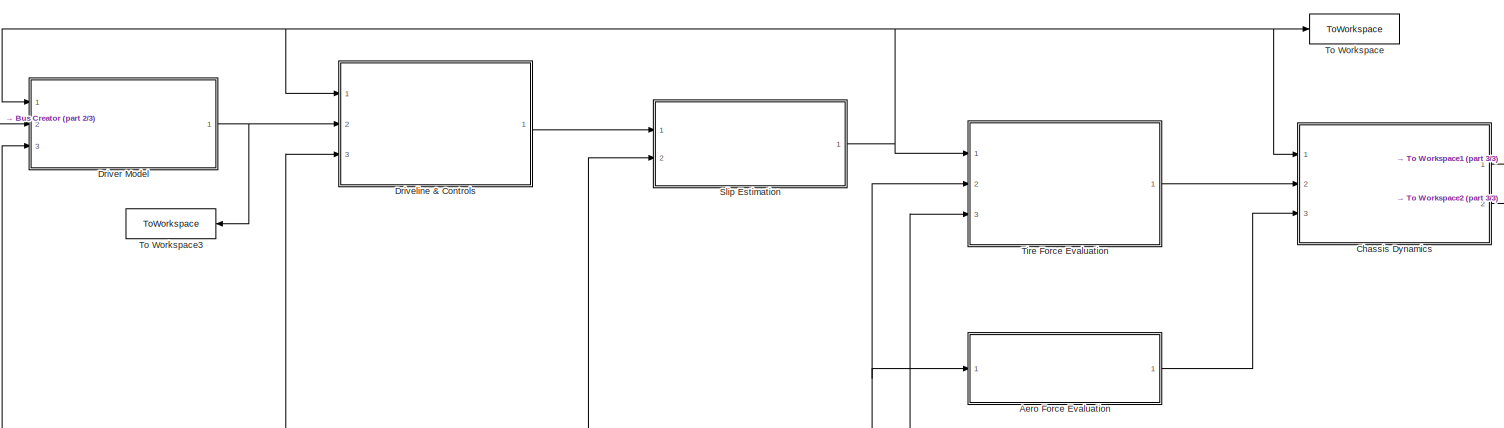
[diagram: root canvas - part 1/3, full width, middle band]
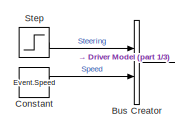
[diagram: root canvas - part 2/3, top left region]
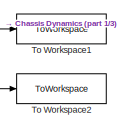
[diagram: root canvas - part 3/3, middle right region]
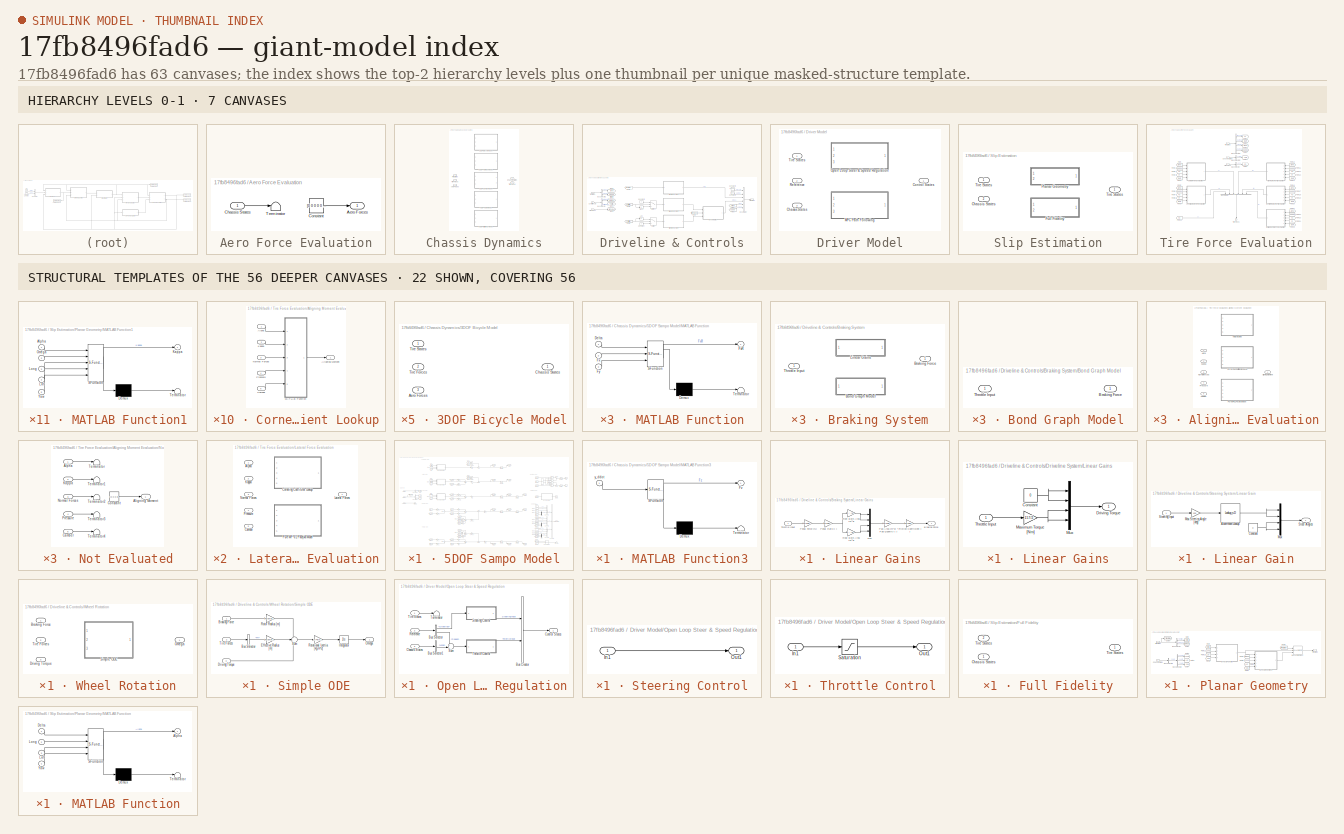
[diagram: thumbnail index - top-2 hierarchy levels (7 canvases) + 22 structural-template representatives of the remaining 56 canvases]
MODEL slx_17fb8496fad6
KIND model
CONFIG AbsTol = auto
CONFIG EnableMultiTasking = off
CONFIG FixedStep = auto
CONFIG MaxStep = 0.001
CONFIG MinStep = auto
CONFIG RelTol = 1e-3
CONFIG SampleTimeConstraint = Unconstrained
CONFIG SolverName = VariableStepAuto
CONFIG StartTime = 0.0
CONFIG StopTime = 7.5
BLOCK [SubSystem] Aero Force Evaluation
  Ports = [1, 1]
  RequestExecContextInheritance = off
BLOCK [Outport] Aero Force Evaluation/Aero Forces
BLOCK [Inport] Aero Force Evaluation/Chassis States
BLOCK [Constant] Aero Force Evaluation/Constant
  Value = [0 0 0 0 0 0]
BLOCK [Terminator] Aero Force Evaluation/Terminator
BLOCK [BusCreator] Bus Creator
  DisplayOption = bar
  InheritFromInputs = on
  Inputs = 2
  Ports = [2, 1]
BLOCK [SubSystem] Chassis Dynamics
  Ports = [3, 2]
  RequestExecContextInheritance = off
  Variant = on
BLOCK [Outport] Chassis Dynamics/ Tire Forces
  Port = 2
BLOCK [SubSystem] Chassis Dynamics/3DOF Bicycle Model
  Ports = [3, 1]
  RequestExecContextInheritance = off
  VariantControl = strcmp(Model.ChassisDynamics,"3DOF Bicycle")
BLOCK [Inport] Chassis Dynamics/3DOF Bicycle Model/Aero Forces
  Port = 3
BLOCK [Outport] Chassis Dynamics/3DOF Bicycle Model/Chassis States
BLOCK [Inport] Chassis Dynamics/3DOF Bicycle Model/Tire Forces 
  Port = 2
BLOCK [Inport] Chassis Dynamics/3DOF Bicycle Model/Tire States
BLOCK [SubSystem] Chassis Dynamics/3DOF Full Track Model
  Ports = [3, 1]
  RequestExecContextInheritance = off
  VariantControl = strcmp(Model.ChassisDynamics,"3DOF Full Track")
BLOCK [Inport] Chassis Dynamics/3DOF Full Track Model/Aero Forces
  Port = 3
BLOCK [Outport] Chassis Dynamics/3DOF Full Track Model/Chassis States
BLOCK [Inport] Chassis Dynamics/3DOF Full Track Model/Tire Forces 
  Port = 2
BLOCK [Inport] Chassis Dynamics/3DOF Full Track Model/Tire States
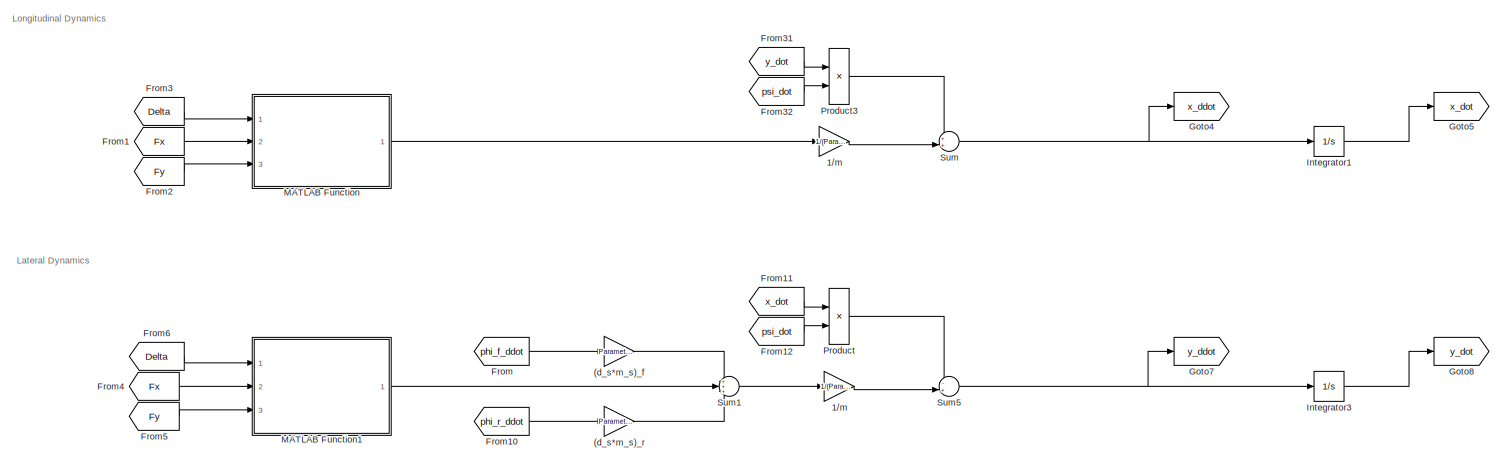
[diagram: Chassis Dynamics/5DOF Sampo Model - part 1/5, top center region]
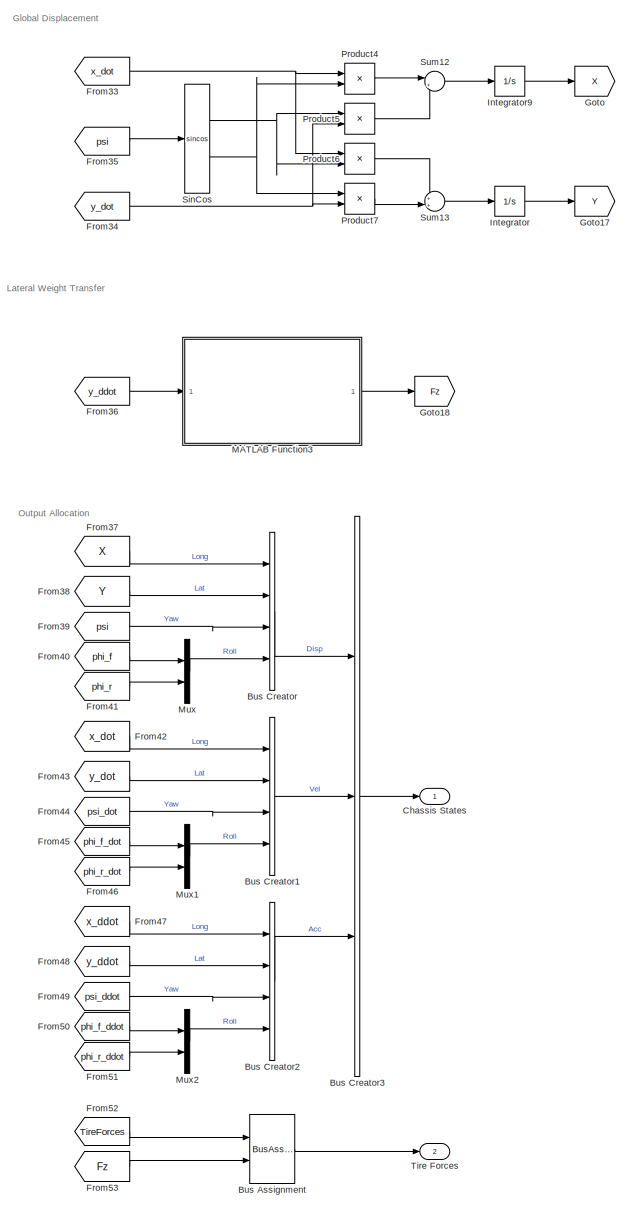
[diagram: Chassis Dynamics/5DOF Sampo Model - part 2/5, right side, full height]
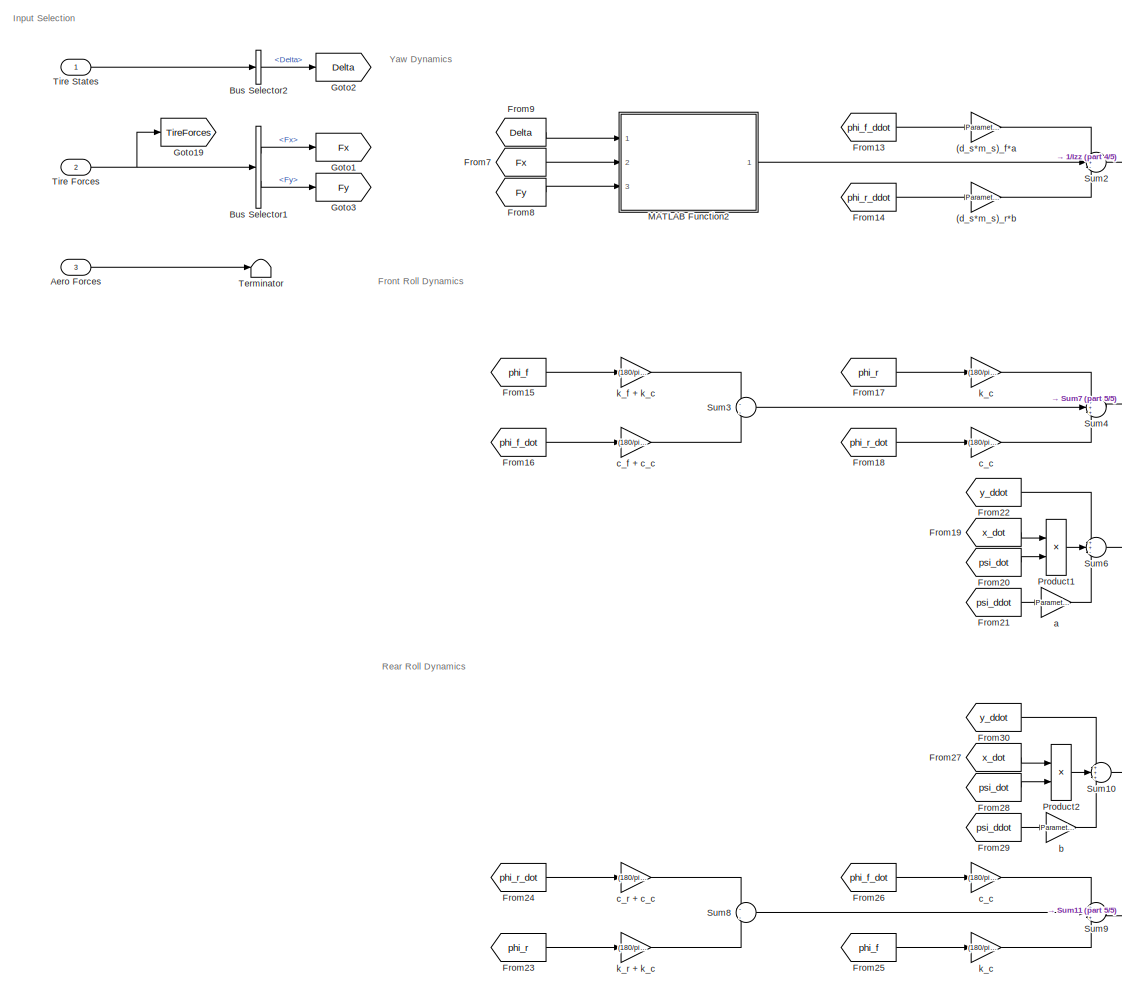
[diagram: Chassis Dynamics/5DOF Sampo Model - part 3/5, middle left region]
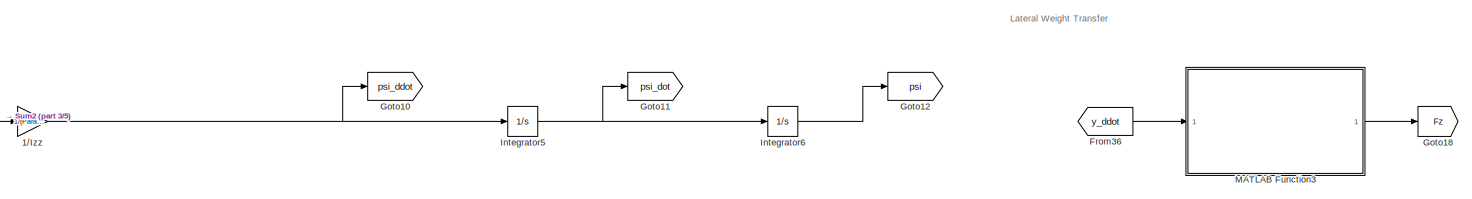
[diagram: Chassis Dynamics/5DOF Sampo Model - part 4/5, middle right region]
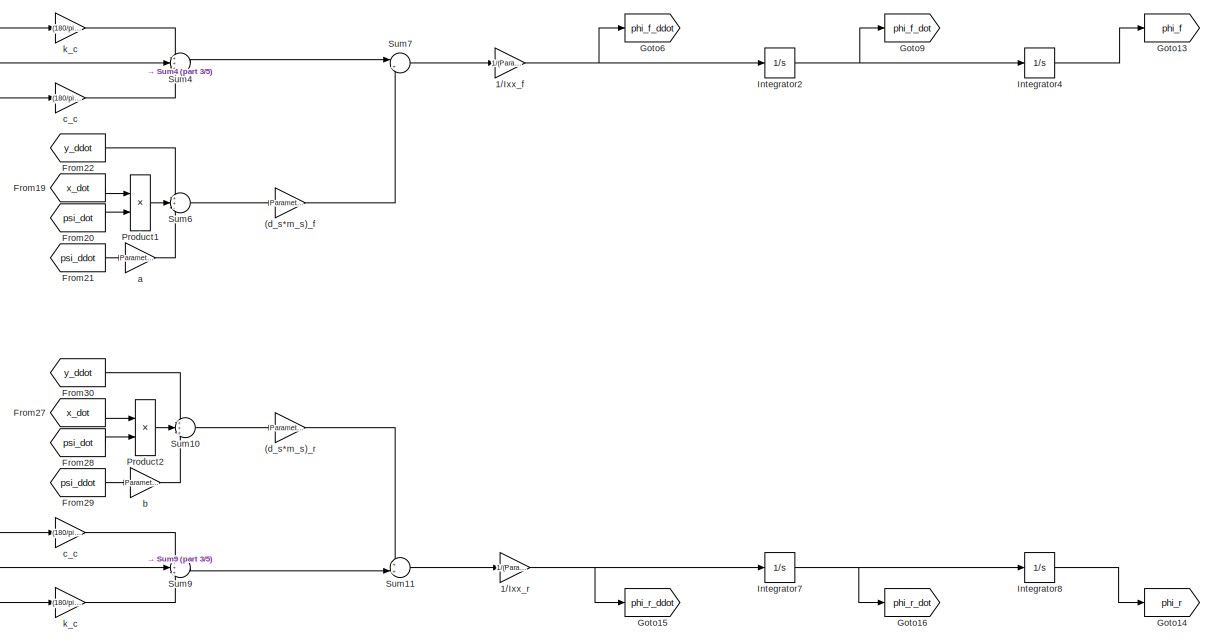
[diagram: Chassis Dynamics/5DOF Sampo Model - part 5/5, bottom center region]
BLOCK [SubSystem] Chassis Dynamics/5DOF Sampo Model
  Ports = [3, 2]
  RequestExecContextInheritance = off
  VariantControl = strcmp(Model.ChassisDynamics,"5DOF Sampo")
BLOCK [Outport] Chassis Dynamics/5DOF Sampo Model/ Tire Forces
  Port = 2
BLOCK [Gain] Chassis Dynamics/5DOF Sampo Model/(d_s*m_s)_f
  Gain = Parameter.Suspension.Roll.Arm(1).*Parameter.Mass.Sprung(1)
BLOCK [Gain] Chassis Dynamics/5DOF Sampo Model/(d_s*m_s)_f 
  Gain = Parameter.Suspension.Roll.Arm(1).*Parameter.Mass.Sprung(1)
BLOCK [Gain] Chassis Dynamics/5DOF Sampo Model/(d_s*m_s)_f*a
  Gain = Parameter.Suspension.Roll.Arm(1).*Parameter.Mass.Sprung(1).*Parameter.Chassis.a
BLOCK [Gain] Chassis Dynamics/5DOF Sampo Model/(d_s*m_s)_r
  Gain = Parameter.Suspension.Roll.Arm(2).*Parameter.Mass.Sprung(2)
BLOCK [Gain] Chassis Dynamics/5DOF Sampo Model/(d_s*m_s)_r 
  Gain = Parameter.Suspension.Roll.Arm(2).*Parameter.Mass.Sprung(2)
BLOCK [Gain] Chassis Dynamics/5DOF Sampo Model/(d_s*m_s)_r*b
  Gain = Parameter.Suspension.Roll.Arm(2).*Parameter.Mass.Sprung(2).*Parameter.Chassis.b
BLOCK [Gain] Chassis Dynamics/5DOF Sampo Model/1//Ixx_f
  Gain = 1/(Parameter.Mass.Ixx(1))
BLOCK [Gain] Chassis Dynamics/5DOF Sampo Model/1//Ixx_r
  Gain = 1/(Parameter.Mass.Ixx(2))
BLOCK [Gain] Chassis Dynamics/5DOF Sampo Model/1//Izz
  Gain = 1/(Parameter.Mass.Izz)
BLOCK [Gain] Chassis Dynamics/5DOF Sampo Model/1//m
  Gain = 1/(Parameter.Mass.Vehicle+Parameter.Mass.Driver)
BLOCK [Gain] Chassis Dynamics/5DOF Sampo Model/1//m 
  Gain = 1/(Parameter.Mass.Vehicle+Parameter.Mass.Driver)
BLOCK [Inport] Chassis Dynamics/5DOF Sampo Model/Aero Forces
  Port = 3
BLOCK [BusAssignment] Chassis Dynamics/5DOF Sampo Model/Bus Assignment
  AssignedSignals = Fz
  Ports = [2, 1]
BLOCK [BusCreator] Chassis Dynamics/5DOF Sampo Model/Bus Creator
  DisplayOption = bar
  InheritFromInputs = on
  Inputs = 4
  Ports = [4, 1]
BLOCK [BusCreator] Chassis Dynamics/5DOF Sampo Model/Bus Creator1
  DisplayOption = bar
  InheritFromInputs = on
  Inputs = 4
  Ports = [4, 1]
BLOCK [BusCreator] Chassis Dynamics/5DOF Sampo Model/Bus Creator2
  DisplayOption = bar
  InheritFromInputs = on
  Inputs = 4
  Ports = [4, 1]
BLOCK [BusCreator] Chassis Dynamics/5DOF Sampo Model/Bus Creator3
  DisplayOption = bar
  InheritFromInputs = on
  Inputs = 3
  Ports = [3, 1]
BLOCK [BusSelector] Chassis Dynamics/5DOF Sampo Model/Bus Selector1
  OutputSignals = Fx,Fy
  Ports = [1, 2]
BLOCK [BusSelector] Chassis Dynamics/5DOF Sampo Model/Bus Selector2
  OutputSignals = Delta
  Ports = [1, 1]
BLOCK [Outport] Chassis Dynamics/5DOF Sampo Model/Chassis States
BLOCK [From] Chassis Dynamics/5DOF Sampo Model/From
  GotoTag = phi_f_ddot
BLOCK [From] Chassis Dynamics/5DOF Sampo Model/From1
  GotoTag = Fx
BLOCK [From] Chassis Dynamics/5DOF Sampo Model/From10
  GotoTag = phi_r_ddot
BLOCK [From] Chassis Dynamics/5DOF Sampo Model/From11
  GotoTag = x_dot
BLOCK [From] Chassis Dynamics/5DOF Sampo Model/From12
  GotoTag = psi_dot
BLOCK [From] Chassis Dynamics/5DOF Sampo Model/From13
  GotoTag = phi_f_ddot
BLOCK [From] Chassis Dynamics/5DOF Sampo Model/From14
  GotoTag = phi_r_ddot
BLOCK [From] Chassis Dynamics/5DOF Sampo Model/From15
  GotoTag = phi_f
BLOCK [From] Chassis Dynamics/5DOF Sampo Model/From16
  GotoTag = phi_f_dot
BLOCK [From] Chassis Dynamics/5DOF Sampo Model/From17
  GotoTag = phi_r
BLOCK [From] Chassis Dynamics/5DOF Sampo Model/From18
  GotoTag = phi_r_dot
BLOCK [From] Chassis Dynamics/5DOF Sampo Model/From19
  GotoTag = x_dot
BLOCK [From] Chassis Dynamics/5DOF Sampo Model/From2
  GotoTag = Fy
BLOCK [From] Chassis Dynamics/5DOF Sampo Model/From20
  GotoTag = psi_dot
BLOCK [From] Chassis Dynamics/5DOF Sampo Model/From21
  GotoTag = psi_ddot
BLOCK [From] Chassis Dynamics/5DOF Sampo Model/From22
  GotoTag = y_ddot
BLOCK [From] Chassis Dynamics/5DOF Sampo Model/From23
  GotoTag = phi_r
  NameLocation = top
BLOCK [From] Chassis Dynamics/5DOF Sampo Model/From24
  GotoTag = phi_r_dot
  NameLocation = top
BLOCK [From] Chassis Dynamics/5DOF Sampo Model/From25
  GotoTag = phi_f
  NameLocation = top
BLOCK [From] Chassis Dynamics/5DOF Sampo Model/From26
  GotoTag = phi_f_dot
  NameLocation = top
BLOCK [From] Chassis Dynamics/5DOF Sampo Model/From27
  GotoTag = x_dot
BLOCK [From] Chassis Dynamics/5DOF Sampo Model/From28
  GotoTag = psi_dot
BLOCK [From] Chassis Dynamics/5DOF Sampo Model/From29
  GotoTag = psi_ddot
BLOCK [From] Chassis Dynamics/5DOF Sampo Model/From3
  GotoTag = Delta
BLOCK [From] Chassis Dynamics/5DOF Sampo Model/From30
  GotoTag = y_ddot
BLOCK [From] Chassis Dynamics/5DOF Sampo Model/From31
  GotoTag = y_dot
BLOCK [From] Chassis Dynamics/5DOF Sampo Model/From32
  GotoTag = psi_dot
BLOCK [From] Chassis Dynamics/5DOF Sampo Model/From33
  GotoTag = x_dot
BLOCK [From] Chassis Dynamics/5DOF Sampo Model/From34
  GotoTag = y_dot
BLOCK [From] Chassis Dynamics/5DOF Sampo Model/From35
  GotoTag = psi
BLOCK [From] Chassis Dynamics/5DOF Sampo Model/From36
  GotoTag = y_ddot
BLOCK [From] Chassis Dynamics/5DOF Sampo Model/From37
  GotoTag = X
BLOCK [From] Chassis Dynamics/5DOF Sampo Model/From38
  GotoTag = Y
BLOCK [From] Chassis Dynamics/5DOF Sampo Model/From39
  GotoTag = psi
BLOCK [From] Chassis Dynamics/5DOF Sampo Model/From4
  GotoTag = Fx
BLOCK [From] Chassis Dynamics/5DOF Sampo Model/From40
  GotoTag = phi_f
BLOCK [From] Chassis Dynamics/5DOF Sampo Model/From41
  GotoTag = phi_r
BLOCK [From] Chassis Dynamics/5DOF Sampo Model/From42
  GotoTag = x_dot
BLOCK [From] Chassis Dynamics/5DOF Sampo Model/From43
  GotoTag = y_dot
BLOCK [From] Chassis Dynamics/5DOF Sampo Model/From44
  GotoTag = psi_dot
BLOCK [From] Chassis Dynamics/5DOF Sampo Model/From45
  GotoTag = phi_f_dot
BLOCK [From] Chassis Dynamics/5DOF Sampo Model/From46
  GotoTag = phi_r_dot
BLOCK [From] Chassis Dynamics/5DOF Sampo Model/From47
  GotoTag = x_ddot
BLOCK [From] Chassis Dynamics/5DOF Sampo Model/From48
  GotoTag = y_ddot
BLOCK [From] Chassis Dynamics/5DOF Sampo Model/From49
  GotoTag = psi_ddot
BLOCK [From] Chassis Dynamics/5DOF Sampo Model/From5
  GotoTag = Fy
BLOCK [From] Chassis Dynamics/5DOF Sampo Model/From50
  GotoTag = phi_f_ddot
BLOCK [From] Chassis Dynamics/5DOF Sampo Model/From51
  GotoTag = phi_r_ddot
BLOCK [From] Chassis Dynamics/5DOF Sampo Model/From52
  GotoTag = TireForces
BLOCK [From] Chassis Dynamics/5DOF Sampo Model/From53
  GotoTag = Fz
BLOCK [From] Chassis Dynamics/5DOF Sampo Model/From6
  GotoTag = Delta
BLOCK [From] Chassis Dynamics/5DOF Sampo Model/From7
  GotoTag = Fx
BLOCK [From] Chassis Dynamics/5DOF Sampo Model/From8
  GotoTag = Fy
BLOCK [From] Chassis Dynamics/5DOF Sampo Model/From9
  GotoTag = Delta
BLOCK [Goto] Chassis Dynamics/5DOF Sampo Model/Goto
  GotoTag = X
BLOCK [Goto] Chassis Dynamics/5DOF Sampo Model/Goto1
  GotoTag = Fx
BLOCK [Goto] Chassis Dynamics/5DOF Sampo Model/Goto10
  GotoTag = psi_ddot
BLOCK [Goto] Chassis Dynamics/5DOF Sampo Model/Goto11
  GotoTag = psi_dot
BLOCK [Goto] Chassis Dynamics/5DOF Sampo Model/Goto12
  GotoTag = psi
BLOCK [Goto] Chassis Dynamics/5DOF Sampo Model/Goto13
  GotoTag = phi_f
BLOCK [Goto] Chassis Dynamics/5DOF Sampo Model/Goto14
  GotoTag = phi_r
  NameLocation = top
BLOCK [Goto] Chassis Dynamics/5DOF Sampo Model/Goto15
  GotoTag = phi_r_ddot
  NameLocation = top
BLOCK [Goto] Chassis Dynamics/5DOF Sampo Model/Goto16
  GotoTag = phi_r_dot
  NameLocation = top
BLOCK [Goto] Chassis Dynamics/5DOF Sampo Model/Goto17
  GotoTag = Y
BLOCK [Goto] Chassis Dynamics/5DOF Sampo Model/Goto18
  GotoTag = Fz
BLOCK [Goto] Chassis Dynamics/5DOF Sampo Model/Goto19
  GotoTag = TireForces
BLOCK [Goto] Chassis Dynamics/5DOF Sampo Model/Goto2
  GotoTag = Delta
BLOCK [Goto] Chassis Dynamics/5DOF Sampo Model/Goto3
  GotoTag = Fy
BLOCK [Goto] Chassis Dynamics/5DOF Sampo Model/Goto4
  GotoTag = x_ddot
BLOCK [Goto] Chassis Dynamics/5DOF Sampo Model/Goto5
  GotoTag = x_dot
BLOCK [Goto] Chassis Dynamics/5DOF Sampo Model/Goto6
  GotoTag = phi_f_ddot
BLOCK [Goto] Chassis Dynamics/5DOF Sampo Model/Goto7
  GotoTag = y_ddot
BLOCK [Goto] Chassis Dynamics/5DOF Sampo Model/Goto8
  GotoTag = y_dot
BLOCK [Goto] Chassis Dynamics/5DOF Sampo Model/Goto9
  GotoTag = phi_f_dot
BLOCK [Integrator] Chassis Dynamics/5DOF Sampo Model/Integrator
  Ports = [1, 1]
BLOCK [Integrator] Chassis Dynamics/5DOF Sampo Model/Integrator1
  InitialCondition = Event.Speed
  Ports = [1, 1]
BLOCK [Integrator] Chassis Dynamics/5DOF Sampo Model/Integrator2
  Ports = [1, 1]
BLOCK [Integrator] Chassis Dynamics/5DOF Sampo Model/Integrator3
  Ports = [1, 1]
BLOCK [Integrator] Chassis Dynamics/5DOF Sampo Model/Integrator4
  Ports = [1, 1]
BLOCK [Integrator] Chassis Dynamics/5DOF Sampo Model/Integrator5
  Ports = [1, 1]
BLOCK [Integrator] Chassis Dynamics/5DOF Sampo Model/Integrator6
  Ports = [1, 1]
BLOCK [Integrator] Chassis Dynamics/5DOF Sampo Model/Integrator7
  NameLocation = top
  Ports = [1, 1]
BLOCK [Integrator] Chassis Dynamics/5DOF Sampo Model/Integrator8
  NameLocation = top
  Ports = [1, 1]
BLOCK [Integrator] Chassis Dynamics/5DOF Sampo Model/Integrator9
  Ports = [1, 1]
BLOCK [SubSystem] Chassis Dynamics/5DOF Sampo Model/MATLAB Function
  ErrorFcn = Stateflow.Translate.translate
  PermitHierarchicalResolution = ExplicitOnly
  Ports = [3, 1]
  RequestExecContextInheritance = off
  SFBlockType = MATLAB Function
  TreatAsAtomicUnit = on
BLOCK [Demux] Chassis Dynamics/5DOF Sampo Model/MATLAB Function/ Demux 
  Outputs = 1
  Ports = [1, 1]
BLOCK [S-Function] Chassis Dynamics/5DOF Sampo Model/MATLAB Function/ SFunction 
  EnableBusSupport = off
  FunctionName = sf_sfun
  PortCounts = [3 2]
  Ports = [3, 2]
  SFcnIsStateOwnerBlock = off
  SFunctionDeploymentMode = off
  Tag = Stateflow S-Function 2
BLOCK [Terminator] Chassis Dynamics/5DOF Sampo Model/MATLAB Function/ Terminator 
BLOCK [Inport] Chassis Dynamics/5DOF Sampo Model/MATLAB Function/Delta
BLOCK [Inport] Chassis Dynamics/5DOF Sampo Model/MATLAB Function/Fx
  Port = 2
BLOCK [Outport] Chassis Dynamics/5DOF Sampo Model/MATLAB Function/FxR
BLOCK [Inport] Chassis Dynamics/5DOF Sampo Model/MATLAB Function/Fy
  Port = 3
BLOCK [SubSystem] Chassis Dynamics/5DOF Sampo Model/MATLAB Function1
  ErrorFcn = Stateflow.Translate.translate
  PermitHierarchicalResolution = ExplicitOnly
  Ports = [3, 1]
  RequestExecContextInheritance = off
  SFBlockType = MATLAB Function
  TreatAsAtomicUnit = on
BLOCK [Demux] Chassis Dynamics/5DOF Sampo Model/MATLAB Function1/ Demux 
  Outputs = 1
  Ports = [1, 1]
BLOCK [S-Function] Chassis Dynamics/5DOF Sampo Model/MATLAB Function1/ SFunction 
  EnableBusSupport = off
  FunctionName = sf_sfun
  PortCounts = [3 2]
  Ports = [3, 2]
  SFcnIsStateOwnerBlock = off
  SFunctionDeploymentMode = off
  Tag = Stateflow S-Function 1
BLOCK [Terminator] Chassis Dynamics/5DOF Sampo Model/MATLAB Function1/ Terminator 
BLOCK [Inport] Chassis Dynamics/5DOF Sampo Model/MATLAB Function1/Delta
BLOCK [Inport] Chassis Dynamics/5DOF Sampo Model/MATLAB Function1/Fx
  Port = 2
BLOCK [Inport] Chassis Dynamics/5DOF Sampo Model/MATLAB Function1/Fy
  Port = 3
BLOCK [Outport] Chassis Dynamics/5DOF Sampo Model/MATLAB Function1/FyR
BLOCK [SubSystem] Chassis Dynamics/5DOF Sampo Model/MATLAB Function2
  ErrorFcn = Stateflow.Translate.translate
  PermitHierarchicalResolution = ExplicitOnly
  Ports = [3, 1]
  RequestExecContextInheritance = off
  SFBlockType = MATLAB Function
  TreatAsAtomicUnit = on
BLOCK [Demux] Chassis Dynamics/5DOF Sampo Model/MATLAB Function2/ Demux 
  Outputs = 1
  Ports = [1, 1]
BLOCK [S-Function] Chassis Dynamics/5DOF Sampo Model/MATLAB Function2/ SFunction 
  EnableBusSupport = off
  FunctionName = sf_sfun
  Parameters = Parameter
  PortCounts = [3 2]
  Ports = [3, 2]
  SFcnIsStateOwnerBlock = off
  SFunctionDeploymentMode = off
  Tag = Stateflow S-Function 13
BLOCK [Terminator] Chassis Dynamics/5DOF Sampo Model/MATLAB Function2/ Terminator 
BLOCK [Inport] Chassis Dynamics/5DOF Sampo Model/MATLAB Function2/Delta
BLOCK [Inport] Chassis Dynamics/5DOF Sampo Model/MATLAB Function2/Fx
  Port = 2
BLOCK [Inport] Chassis Dynamics/5DOF Sampo Model/MATLAB Function2/Fy
  Port = 3
BLOCK [Outport] Chassis Dynamics/5DOF Sampo Model/MATLAB Function2/MzR
BLOCK [SubSystem] Chassis Dynamics/5DOF Sampo Model/MATLAB Function3
  ErrorFcn = Stateflow.Translate.translate
  PermitHierarchicalResolution = ExplicitOnly
  Ports = [1, 1]
  RequestExecContextInheritance = off
  SFBlockType = MATLAB Function
  TreatAsAtomicUnit = on
BLOCK [Demux] Chassis Dynamics/5DOF Sampo Model/MATLAB Function3/ Demux 
  Outputs = 1
  Ports = [1, 1]
BLOCK [S-Function] Chassis Dynamics/5DOF Sampo Model/MATLAB Function3/ SFunction 
  EnableBusSupport = off
  FunctionName = sf_sfun
  Parameters = Parameter
  PortCounts = [1 2]
  Ports = [1, 2]
  SFcnIsStateOwnerBlock = off
  SFunctionDeploymentMode = off
  Tag = Stateflow S-Function 16
BLOCK [Terminator] Chassis Dynamics/5DOF Sampo Model/MATLAB Function3/ Terminator 
BLOCK [Outport] Chassis Dynamics/5DOF Sampo Model/MATLAB Function3/Fz
BLOCK [Inport] Chassis Dynamics/5DOF Sampo Model/MATLAB Function3/y_ddot
BLOCK [Mux] Chassis Dynamics/5DOF Sampo Model/Mux
  DisplayOption = bar
  Inputs = 2
  Ports = [2, 1]
BLOCK [Mux] Chassis Dynamics/5DOF Sampo Model/Mux1
  DisplayOption = bar
  Inputs = 2
  Ports = [2, 1]
BLOCK [Mux] Chassis Dynamics/5DOF Sampo Model/Mux2
  DisplayOption = bar
  Inputs = 2
  Ports = [2, 1]
BLOCK [Product] Chassis Dynamics/5DOF Sampo Model/Product
  Ports = [2, 1]
BLOCK [Product] Chassis Dynamics/5DOF Sampo Model/Product1
  Ports = [2, 1]
BLOCK [Product] Chassis Dynamics/5DOF Sampo Model/Product2
  Ports = [2, 1]
BLOCK [Product] Chassis Dynamics/5DOF Sampo Model/Product3
  Ports = [2, 1]
BLOCK [Product] Chassis Dynamics/5DOF Sampo Model/Product4
  Ports = [2, 1]
BLOCK [Product] Chassis Dynamics/5DOF Sampo Model/Product5
  Ports = [2, 1]
BLOCK [Product] Chassis Dynamics/5DOF Sampo Model/Product6
  Ports = [2, 1]
BLOCK [Product] Chassis Dynamics/5DOF Sampo Model/Product7
  Ports = [2, 1]
BLOCK [Trigonometry] Chassis Dynamics/5DOF Sampo Model/SinCos
  Operator = sincos
  Ports = [1, 2]
BLOCK [Sum] Chassis Dynamics/5DOF Sampo Model/Sum
  Inputs = ++|
  Ports = [2, 1]
BLOCK [Sum] Chassis Dynamics/5DOF Sampo Model/Sum1
  Inputs = +++
  Ports = [3, 1]
BLOCK [Sum] Chassis Dynamics/5DOF Sampo Model/Sum10
  Inputs = +++
  Ports = [3, 1]
BLOCK [Sum] Chassis Dynamics/5DOF Sampo Model/Sum11
  Inputs = ++|
  NameLocation = top
  Ports = [2, 1]
BLOCK [Sum] Chassis Dynamics/5DOF Sampo Model/Sum12
  Inputs = |+-
  Ports = [2, 1]
BLOCK [Sum] Chassis Dynamics/5DOF Sampo Model/Sum13
  Inputs = ++|
  Ports = [2, 1]
BLOCK [Sum] Chassis Dynamics/5DOF Sampo Model/Sum2
  Inputs = ++-
  Ports = [3, 1]
BLOCK [Sum] Chassis Dynamics/5DOF Sampo Model/Sum3
  Inputs = -|-
  Ports = [2, 1]
BLOCK [Sum] Chassis Dynamics/5DOF Sampo Model/Sum4
  Inputs = +++
  Ports = [3, 1]
BLOCK [Sum] Chassis Dynamics/5DOF Sampo Model/Sum5
  Inputs = -+|
  Ports = [2, 1]
BLOCK [Sum] Chassis Dynamics/5DOF Sampo Model/Sum6
  Inputs = ++-
  Ports = [3, 1]
BLOCK [Sum] Chassis Dynamics/5DOF Sampo Model/Sum7
  Inputs = |++
  Ports = [2, 1]
BLOCK [Sum] Chassis Dynamics/5DOF Sampo Model/Sum8
  Inputs = -|-
  NameLocation = top
  Ports = [2, 1]
BLOCK [Sum] Chassis Dynamics/5DOF Sampo Model/Sum9
  Inputs = +++
  NameLocation = top
  Ports = [3, 1]
BLOCK [Terminator] Chassis Dynamics/5DOF Sampo Model/Terminator
BLOCK [Inport] Chassis Dynamics/5DOF Sampo Model/Tire Forces 
  Port = 2
BLOCK [Inport] Chassis Dynamics/5DOF Sampo Model/Tire States
BLOCK [Gain] Chassis Dynamics/5DOF Sampo Model/a
  Gain = Parameter.Chassis.a
BLOCK [Gain] Chassis Dynamics/5DOF Sampo Model/b
  Gain = Parameter.Chassis.b
BLOCK [Gain] Chassis Dynamics/5DOF Sampo Model/c_c
  Gain = (180/pi)*(Parameter.Chassis.Damping)
BLOCK [Gain] Chassis Dynamics/5DOF Sampo Model/c_c 
  Gain = (180/pi)*(Parameter.Chassis.Damping)
BLOCK [Gain] Chassis Dynamics/5DOF Sampo Model/c_f + c_c
  Gain = (180/pi)*(Parameter.Suspension.Roll.Damping(1)+Parameter.Chassis.Damping)
BLOCK [Gain] Chassis Dynamics/5DOF Sampo Model/c_r + c_c
  Gain = (180/pi)*(Parameter.Suspension.Roll.Damping(2)+Parameter.Chassis.Damping)
  NameLocation = top
BLOCK [Gain] Chassis Dynamics/5DOF Sampo Model/k_c
  Gain = (180/pi)*(Parameter.Chassis.Stiffness)
BLOCK [Gain] Chassis Dynamics/5DOF Sampo Model/k_c 
  Gain = (180/pi)*(Parameter.Chassis.Stiffness)
BLOCK [Gain] Chassis Dynamics/5DOF Sampo Model/k_f + k_c
  Gain = (180/pi)*(Parameter.Suspension.Roll.Stiffness(1)+Parameter.Chassis.Stiffness)
BLOCK [Gain] Chassis Dynamics/5DOF Sampo Model/k_r + k_c
  Gain = (180/pi)*(Parameter.Suspension.Roll.Stiffness(2)+Parameter.Chassis.Stiffness)
  NameLocation = top
BLOCK [SubSystem] Chassis Dynamics/7DOF Table Model 
  Ports = [3, 1]
  RequestExecContextInheritance = off
  VariantControl = strcmp(Model.ChassisDynamics,"7DOF Table")
BLOCK [Inport] Chassis Dynamics/7DOF Table Model /Aero Forces
  Port = 3
BLOCK [Outport] Chassis Dynamics/7DOF Table Model /Chassis States
BLOCK [Inport] Chassis Dynamics/7DOF Table Model /Tire Forces 
  Port = 2
BLOCK [Inport] Chassis Dynamics/7DOF Table Model /Tire States
BLOCK [Inport] Chassis Dynamics/Aero Forces
  Port = 3
BLOCK [Outport] Chassis Dynamics/Chassis States
BLOCK [Inport] Chassis Dynamics/Tire Forces 
  Port = 2
BLOCK [Inport] Chassis Dynamics/Tire States
BLOCK [SubSystem] Chassis Dynamics/nDOF Multibody Model
  Ports = [3, 1]
  RequestExecContextInheritance = off
  VariantControl = strcmp(Model.ChassisDynamics,"nDOF Multibody")
BLOCK [Inport] Chassis Dynamics/nDOF Multibody Model/Aero Forces
  Port = 3
BLOCK [Outport] Chassis Dynamics/nDOF Multibody Model/Chassis States
BLOCK [Inport] Chassis Dynamics/nDOF Multibody Model/Tire Forces 
  Port = 2
BLOCK [Inport] Chassis Dynamics/nDOF Multibody Model/Tire States
BLOCK [Constant] Constant
  Value = Event.Speed
BLOCK [SubSystem] Driveline & Controls
  Ports = [3, 1]
  RequestExecContextInheritance = off
BLOCK [Abs] Driveline & Controls/Abs
  SaturateOnIntegerOverflow = off
BLOCK [Abs] Driveline & Controls/Abs1
  SaturateOnIntegerOverflow = off
BLOCK [SubSystem] Driveline & Controls/Braking System
  Ports = [1, 1]
  RequestExecContextInheritance = off
  Variant = on
BLOCK [SubSystem] Driveline & Controls/Braking System/Bond Graph Model
  Ports = [1, 1]
  RequestExecContextInheritance = off
  VariantControl = strcmp(Model.BrakingSystem,"Bond Graph Model")
BLOCK [Outport] Driveline & Controls/Braking System/Bond Graph Model/Braking Force
BLOCK [Inport] Driveline & Controls/Braking System/Bond Graph Model/Throttle Input
BLOCK [Outport] Driveline & Controls/Braking System/Braking Force
BLOCK [SubSystem] Driveline & Controls/Braking System/Linear Gains
  Ports = [1, 1]
  RequestExecContextInheritance = off
  VariantControl = strcmp(Model.BrakingSystem,"Simple Gains")
BLOCK [Outport] Driveline & Controls/Braking System/Linear Gains/Braking Force
BLOCK [Gain] Driveline & Controls/Braking System/Linear Gains/Friction Coefficient [ ]
  Gain = Parameter.Brake.Pad.Mu
BLOCK [Gain] Driveline & Controls/Braking System/Linear Gains/Front Bore Area [m^2]
  Gain = 1 / (pi*Parameter.Brake.Cylinder.Bore(1)^2)
BLOCK [Mux] Driveline & Controls/Braking System/Linear Gains/Mux
  DisplayOption = bar
  Ports = [4, 1]
BLOCK [Gain] Driveline & Controls/Braking System/Linear Gains/Pad Area [m^2] * Pad Quantity [ ]
  Gain = Parameter.Brake.Pad.No*Parameter.Brake.Pad.Area
BLOCK [Gain] Driveline & Controls/Braking System/Linear Gains/Pedal Force [N]
  Gain = Parameter.Brake.Pedal.Force
BLOCK [Gain] Driveline & Controls/Braking System/Linear Gains/Pedal Ratio [ ]
  Gain = Parameter.Brake.Pedal.Ratio
BLOCK [Gain] Driveline & Controls/Braking System/Linear Gains/Rear Bore Area [m^2]
  Gain = 1 / (pi*Parameter.Brake.Cylinder.Bore(2)^2)
BLOCK [Inport] Driveline & Controls/Braking System/Linear Gains/Throttle Input
BLOCK [Inport] Driveline & Controls/Braking System/Throttle Input
BLOCK [BusCreator] Driveline & Controls/Bus Creator
  DisplayOption = bar
  InheritFromInputs = on
  Inputs = 6
  Ports = [6, 1]
BLOCK [BusSelector] Driveline & Controls/Bus Selector
  OutputSignals = SteeringInput,ThrottleInput
  Ports = [1, 2]
BLOCK [BusSelector] Driveline & Controls/Bus Selector1
  OutputSignals = Alpha,Kappa
  Ports = [1, 2]
BLOCK [Constant] Driveline & Controls/Constant
  Value = 0
BLOCK [Constant] Driveline & Controls/Constant1
  Value = 0
BLOCK [Constant] Driveline & Controls/Constant2
  Value = [10 10 10 10]
BLOCK [Constant] Driveline & Controls/Constant3
  Value = [0 0 0 0]
BLOCK [Inport] Driveline & Controls/Control Inputs
  Port = 2
BLOCK [SubSystem] Driveline & Controls/Driveline System
  Ports = [1, 1]
  RequestExecContextInheritance = off
  Variant = on
BLOCK [SubSystem] Driveline & Controls/Driveline System/Bond Graph
  Ports = [1, 1]
  RequestExecContextInheritance = off
  VariantControl = strcmp(Model.DrivelineSystem,"Bond Graph Model")
BLOCK [Outport] Driveline & Controls/Driveline System/Bond Graph/Driving Torque
BLOCK [Inport] Driveline & Controls/Driveline System/Bond Graph/Throttle Input
BLOCK [Outport] Driveline & Controls/Driveline System/Driving Torque
BLOCK [SubSystem] Driveline & Controls/Driveline System/Linear Gains
  Ports = [1, 1]
  RequestExecContextInheritance = off
  VariantControl = strcmp(Model.DrivelineSystem,"Simple Gains")
BLOCK [Constant] Driveline & Controls/Driveline System/Linear Gains/Constant
  Value = 0
BLOCK [Outport] Driveline & Controls/Driveline System/Linear Gains/Driving Torque
BLOCK [Gain] Driveline & Controls/Driveline System/Linear Gains/Maximum Torque [Nm]
  Gain = 157/2
BLOCK [Mux] Driveline & Controls/Driveline System/Linear Gains/Mux
  DisplayOption = bar
  Ports = [4, 1]
BLOCK [Inport] Driveline & Controls/Driveline System/Linear Gains/Throttle Input
BLOCK [Inport] Driveline & Controls/Driveline System/Throttle Input
BLOCK [From] Driveline & Controls/From
  GotoTag = TireForces
BLOCK [From] Driveline & Controls/From1
  GotoTag = ThrottleInput
BLOCK [From] Driveline & Controls/From2
  GotoTag = ThrottleInput
BLOCK [From] Driveline & Controls/From3
  GotoTag = Alpha
BLOCK [From] Driveline & Controls/From4
  GotoTag = SteeringInput
BLOCK [From] Driveline & Controls/From5
  GotoTag = Kappa
BLOCK [Goto] Driveline & Controls/Goto1
  GotoTag = ThrottleInput
BLOCK [Goto] Driveline & Controls/Goto2
  GotoTag = SteeringInput
BLOCK [Goto] Driveline & Controls/Goto3
  GotoTag = TireForces
BLOCK [Goto] Driveline & Controls/Goto4
  GotoTag = Kappa
BLOCK [Goto] Driveline & Controls/Goto5
  GotoTag = Alpha
BLOCK [SubSystem] Driveline & Controls/Steering System
  Ports = [1, 1]
  RequestExecContextInheritance = off
  Variant = on
BLOCK [SubSystem] Driveline & Controls/Steering System/Ackermann Lookup
  Ports = [1, 1]
  RequestExecContextInheritance = off
  VariantControl = strcmp(Model.SteeringSystem,"Lookup Table")
BLOCK [Outport] Driveline & Controls/Steering System/Ackermann Lookup/Steer Angles
BLOCK [Inport] Driveline & Controls/Steering System/Ackermann Lookup/Steering Input
BLOCK [SubSystem] Driveline & Controls/Steering System/Linear Gain
  Ports = [1, 1]
  RequestExecContextInheritance = off
  VariantControl = strcmp(Model.SteeringSystem,"Simple Gains")
BLOCK [Lookup_n-D] Driveline & Controls/Steering System/Linear Gain/Ackermann Lookup
  BreakpointsForDimension1 = linspace(-120,120,20)
  InputPortMap = u0
  InternalRulePriority = Speed
  InterpMethod = Cubic spline
  NumberOfTableDimensions = 1
  Ports = [1, 1]
  RndMeth = Simplest
  Table = linspace(-30,30,20)
BLOCK [Constant] Driveline & Controls/Steering System/Linear Gain/Constant
  Value = 0
BLOCK [Gain] Driveline & Controls/Steering System/Linear Gain/Max Steering Angle [deg]
  Gain = 120
BLOCK [Mux] Driveline & Controls/Steering System/Linear Gain/Mux
  DisplayOption = bar
  Ports = [4, 1]
BLOCK [Outport] Driveline & Controls/Steering System/Linear Gain/Steer Angles
BLOCK [Inport] Driveline & Controls/Steering System/Linear Gain/Steering Input
BLOCK [Outport] Driveline & Controls/Steering System/Steer Angles
BLOCK [Inport] Driveline & Controls/Steering System/Steering Input
BLOCK [Switch] Driveline & Controls/Switch
  Criteria = u2 > Threshold
  InputSameDT = off
  SaturateOnIntegerOverflow = off
BLOCK [Switch] Driveline & Controls/Switch1
  Criteria = u2 > Threshold
  InputSameDT = off
  SaturateOnIntegerOverflow = off
BLOCK [Inport] Driveline & Controls/Tire Forces
  Port = 3
BLOCK [Outport] Driveline & Controls/Tire States
BLOCK [Inport] Driveline & Controls/Tire States 
BLOCK [SubSystem] Driveline & Controls/Wheel Rotation
  Ports = [3, 1]
  RequestExecContextInheritance = off
  Variant = on
BLOCK [Inport] Driveline & Controls/Wheel Rotation/Braking Force
BLOCK [Inport] Driveline & Controls/Wheel Rotation/Driving Torque
  Port = 3
BLOCK [Outport] Driveline & Controls/Wheel Rotation/Omega
BLOCK [SubSystem] Driveline & Controls/Wheel Rotation/Simple ODE
  Ports = [3, 1]
  RequestExecContextInheritance = off
  VariantControl = strcmp(Model.WheelRotation,"Simple ODE")
BLOCK [Inport] Driveline & Controls/Wheel Rotation/Simple ODE/Braking Force
BLOCK [BusSelector] Driveline & Controls/Wheel Rotation/Simple ODE/Bus Selector
  OutputSignals = Fx
  Ports = [1, 1]
BLOCK [Inport] Driveline & Controls/Wheel Rotation/Simple ODE/Driving Torque
  Port = 3
BLOCK [Gain] Driveline & Controls/Wheel Rotation/Simple ODE/Effective Radius [m]
  Gain = Parameter.Tire.Re
BLOCK [Integrator] Driveline & Controls/Wheel Rotation/Simple ODE/Integrator
  InitialCondition = Event.Speed/Parameter.Tire.Re.*ones(4,1)
  Ports = [1, 1]
BLOCK [Outport] Driveline & Controls/Wheel Rotation/Simple ODE/Omega
BLOCK [Gain] Driveline & Controls/Wheel Rotation/Simple ODE/Rotational Inertia [kg-m^2]
  Gain = 1./Parameter.Wheel.Iw
BLOCK [Gain] Driveline & Controls/Wheel Rotation/Simple ODE/Rotor Radius [m]
  Gain = Parameter.Brake.Rotor.Radius
BLOCK [Sum] Driveline & Controls/Wheel Rotation/Simple ODE/Sum
  Inputs = --+
  Ports = [3, 1]
BLOCK [Inport] Driveline & Controls/Wheel Rotation/Simple ODE/Tire Forces
  Port = 2
BLOCK [Inport] Driveline & Controls/Wheel Rotation/Tire Forces
  Port = 2
BLOCK [SubSystem] Driver Model
  Ports = [3, 1]
  RequestExecContextInheritance = off
  Variant = on
BLOCK [Inport] Driver Model/Chassis States
  Port = 3
BLOCK [Outport] Driver Model/Control States
BLOCK [SubSystem] Driver Model/MPC Path Following
  Ports = [3, 1]
  RequestExecContextInheritance = off
  VariantControl = strcmp(Model.Driver,"Path Following")
BLOCK [Inport] Driver Model/MPC Path Following/Chassis States
  Port = 3
BLOCK [Outport] Driver Model/MPC Path Following/Control States
BLOCK [Inport] Driver Model/MPC Path Following/Reference
  Port = 2
BLOCK [Inport] Driver Model/MPC Path Following/Tire States
BLOCK [SubSystem] Driver Model/Open Loop Steer & Speed Regulation
  Ports = [3, 1]
  RequestExecContextInheritance = off
  VariantControl = strcmp(Model.Driver,"Open Loop & Regulation Control")
BLOCK [BusCreator] Driver Model/Open Loop Steer & Speed Regulation/Bus Creator
  DisplayOption = bar
  InheritFromInputs = on
  Inputs = 2
  Ports = [2, 1]
BLOCK [BusSelector] Driver Model/Open Loop Steer & Speed Regulation/Bus Selector
  OutputSignals = Steering,Speed
  Ports = [1, 2]
BLOCK [BusSelector] Driver Model/Open Loop Steer & Speed Regulation/Bus Selector1
  OutputSignals = Vel.Long
  Ports = [1, 1]
BLOCK [Inport] Driver Model/Open Loop Steer & Speed Regulation/Chassis States
  Port = 3
BLOCK [Outport] Driver Model/Open Loop Steer & Speed Regulation/Control States
BLOCK [Inport] Driver Model/Open Loop Steer & Speed Regulation/Reference
  Port = 2
BLOCK [SubSystem] Driver Model/Open Loop Steer & Speed Regulation/Steering Control
  Ports = [1, 1]
  RequestExecContextInheritance = off
BLOCK [Inport] Driver Model/Open Loop Steer & Speed Regulation/Steering Control/In1
BLOCK [Outport] Driver Model/Open Loop Steer & Speed Regulation/Steering Control/Out1
BLOCK [Sum] Driver Model/Open Loop Steer & Speed Regulation/Sum
  Inputs = +-|
  NameLocation = top
  Ports = [2, 1]
BLOCK [Terminator] Driver Model/Open Loop Steer & Speed Regulation/Terminator
BLOCK [SubSystem] Driver Model/Open Loop Steer & Speed Regulation/Throttle Control
  Ports = [1, 1]
  RequestExecContextInheritance = off
BLOCK [Inport] Driver Model/Open Loop Steer & Speed Regulation/Throttle Control/In1
BLOCK [Outport] Driver Model/Open Loop Steer & Speed Regulation/Throttle Control/Out1
BLOCK [Saturate] Driver Model/Open Loop Steer & Speed Regulation/Throttle Control/Saturation
  LowerLimit = -1
  UpperLimit = 1
BLOCK [Inport] Driver Model/Open Loop Steer & Speed Regulation/Tire States
BLOCK [Inport] Driver Model/Reference
  Port = 2
BLOCK [Inport] Driver Model/Tire States
BLOCK [SubSystem] Slip Estimation
  Ports = [2, 1]
  RequestExecContextInheritance = off
  Variant = on
BLOCK [Outport] Slip Estimation/ Tire States
BLOCK [Inport] Slip Estimation/Chassis States
  Port = 2
BLOCK [SubSystem] Slip Estimation/Full Fidelity
  Ports = [2, 1]
  RequestExecContextInheritance = off
  VariantControl = strcmp(Model.SlipEstimation,"Full Fidelity")
BLOCK [Outport] Slip Estimation/Full Fidelity/ Tire States
BLOCK [Inport] Slip Estimation/Full Fidelity/Chassis States
BLOCK [Inport] Slip Estimation/Full Fidelity/Tire States
  Port = 2
BLOCK [SubSystem] Slip Estimation/Planar Geometry
  Ports = [2, 1]
  RequestExecContextInheritance = off
  VariantControl = strcmp(Model.SlipEstimation,"Planar")
BLOCK [Outport] Slip Estimation/Planar Geometry/ Tire States
BLOCK [BusAssignment] Slip Estimation/Planar Geometry/Bus Assignment
  AssignedSignals = Alpha,Kappa
  Ports = [3, 1]
BLOCK [BusSelector] Slip Estimation/Planar Geometry/Bus Selector
  OutputSignals = Delta,Omega
  Ports = [1, 2]
BLOCK [BusSelector] Slip Estimation/Planar Geometry/Bus Selector1
  OutputSignals = Vel
  Ports = [1, 1]
BLOCK [BusSelector] Slip Estimation/Planar Geometry/Bus Selector2
  OutputSignals = Long,Lat,Yaw
  Ports = [1, 3]
BLOCK [Inport] Slip Estimation/Planar Geometry/Chassis States
  Port = 2
BLOCK [From] Slip Estimation/Planar Geometry/From
  GotoTag = Delta
BLOCK [From] Slip Estimation/Planar Geometry/From1
  GotoTag = Long
BLOCK [From] Slip Estimation/Planar Geometry/From2
  GotoTag = Lat
BLOCK [From] Slip Estimation/Planar Geometry/From3
  GotoTag = Yaw
BLOCK [From] Slip Estimation/Planar Geometry/From4
  GotoTag = Omega
BLOCK [From] Slip Estimation/Planar Geometry/From5
  GotoTag = Long
BLOCK [From] Slip Estimation/Planar Geometry/From6
  GotoTag = Lat
BLOCK [From] Slip Estimation/Planar Geometry/From7
  GotoTag = Yaw
BLOCK [From] Slip Estimation/Planar Geometry/From8
  GotoTag = TireStates
BLOCK [Goto] Slip Estimation/Planar Geometry/Goto
  GotoTag = Delta
BLOCK [Goto] Slip Estimation/Planar Geometry/Goto1
  GotoTag = Omega
BLOCK [Goto] Slip Estimation/Planar Geometry/Goto2
  GotoTag = Long
BLOCK [Goto] Slip Estimation/Planar Geometry/Goto3
  GotoTag = Lat
BLOCK [Goto] Slip Estimation/Planar Geometry/Goto4
  GotoTag = Yaw
BLOCK [Goto] Slip Estimation/Planar Geometry/Goto5
  GotoTag = TireStates
BLOCK [SubSystem] Slip Estimation/Planar Geometry/MATLAB Function
  ErrorFcn = Stateflow.Translate.translate
  PermitHierarchicalResolution = ExplicitOnly
  Ports = [4, 1]
  RequestExecContextInheritance = off
  SFBlockType = MATLAB Function
  TreatAsAtomicUnit = on
BLOCK [Demux] Slip Estimation/Planar Geometry/MATLAB Function/ Demux 
  Outputs = 1
  Ports = [1, 1]
BLOCK [S-Function] Slip Estimation/Planar Geometry/MATLAB Function/ SFunction 
  EnableBusSupport = off
  FunctionName = sf_sfun
  Parameters = Parameter
  PortCounts = [4 2]
  Ports = [4, 2]
  SFcnIsStateOwnerBlock = off
  SFunctionDeploymentMode = off
  Tag = Stateflow S-Function 14
BLOCK [Terminator] Slip Estimation/Planar Geometry/MATLAB Function/ Terminator 
BLOCK [Outport] Slip Estimation/Planar Geometry/MATLAB Function/Alpha
BLOCK [Inport] Slip Estimation/Planar Geometry/MATLAB Function/Delta
BLOCK [Inport] Slip Estimation/Planar Geometry/MATLAB Function/Lat
  Port = 3
BLOCK [Inport] Slip Estimation/Planar Geometry/MATLAB Function/Long
  Port = 2
BLOCK [Inport] Slip Estimation/Planar Geometry/MATLAB Function/Yaw
  Port = 4
BLOCK [SubSystem] Slip Estimation/Planar Geometry/MATLAB Function1
  ErrorFcn = Stateflow.Translate.translate
  PermitHierarchicalResolution = ExplicitOnly
  Ports = [5, 1]
  RequestExecContextInheritance = off
  SFBlockType = MATLAB Function
  TreatAsAtomicUnit = on
BLOCK [Demux] Slip Estimation/Planar Geometry/MATLAB Function1/ Demux 
  Outputs = 1
  Ports = [1, 1]
BLOCK [S-Function] Slip Estimation/Planar Geometry/MATLAB Function1/ SFunction 
  EnableBusSupport = off
  FunctionName = sf_sfun
  Parameters = Parameter
  PortCounts = [5 2]
  Ports = [5, 2]
  SFcnIsStateOwnerBlock = off
  SFunctionDeploymentMode = off
  Tag = Stateflow S-Function 15
BLOCK [Terminator] Slip Estimation/Planar Geometry/MATLAB Function1/ Terminator 
BLOCK [Inport] Slip Estimation/Planar Geometry/MATLAB Function1/Alpha
BLOCK [Outport] Slip Estimation/Planar Geometry/MATLAB Function1/Kappa
BLOCK [Inport] Slip Estimation/Planar Geometry/MATLAB Function1/Lat
  Port = 4
BLOCK [Inport] Slip Estimation/Planar Geometry/MATLAB Function1/Long
  Port = 3
BLOCK [Inport] Slip Estimation/Planar Geometry/MATLAB Function1/Omega
  Port = 2
BLOCK [Inport] Slip Estimation/Planar Geometry/MATLAB Function1/Yaw
  Port = 5
BLOCK [Inport] Slip Estimation/Planar Geometry/Tire States
BLOCK [Inport] Slip Estimation/Tire States
BLOCK [Step] Step
  After = Event.Amplitude
  SampleTime = 0
  Time = 0.2
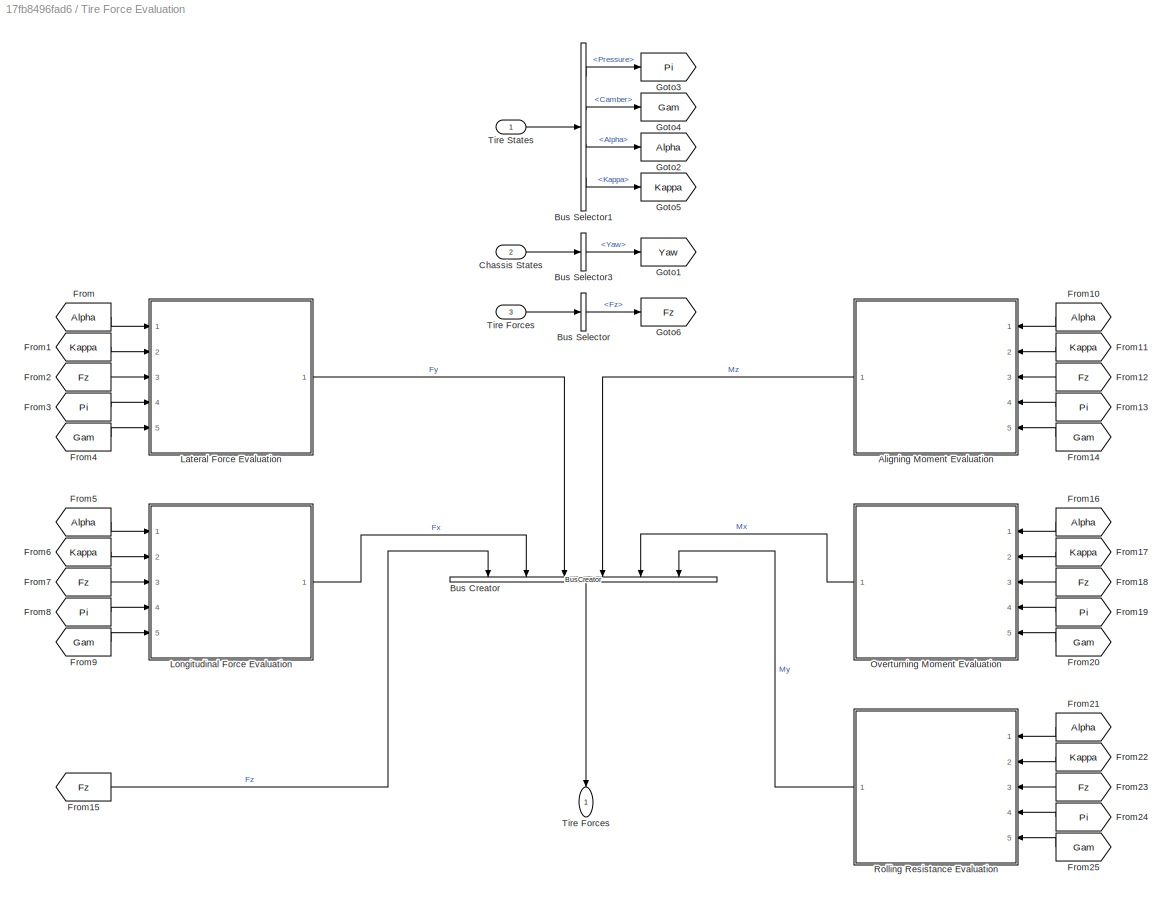
BLOCK [SubSystem] Tire Force Evaluation
  Ports = [3, 1]
  RequestExecContextInheritance = off
BLOCK [Outport] Tire Force Evaluation/ Tire Forces
  NameLocation = left
  VectorParamsAs1DForOutWhenUnconnected = off
BLOCK [SubSystem] Tire Force Evaluation/Aligning Moment Evaluation
  Ports = [5, 1]
  RequestExecContextInheritance = off
  Variant = on
BLOCK [Outport] Tire Force Evaluation/Aligning Moment Evaluation/Aligning Moment
  VectorParamsAs1DForOutWhenUnconnected = off
BLOCK [Inport] Tire Force Evaluation/Aligning Moment Evaluation/Alpha
BLOCK [Inport] Tire Force Evaluation/Aligning Moment Evaluation/Camber
  Port = 5
BLOCK [SubSystem] Tire Force Evaluation/Aligning Moment Evaluation/Cornering Coefficient Lookup
  Ports = [5, 1]
  RequestExecContextInheritance = off
  VariantControl = strcmp(Model.TireForceEvaluation.Aligning,"Cornering Coefficient")
BLOCK [Outport] Tire Force Evaluation/Aligning Moment Evaluation/Cornering Coefficient Lookup/Aligning Moment
  VectorParamsAs1DForOutWhenUnconnected = off
BLOCK [Inport] Tire Force Evaluation/Aligning Moment Evaluation/Cornering Coefficient Lookup/Alpha
BLOCK [Inport] Tire Force Evaluation/Aligning Moment Evaluation/Cornering Coefficient Lookup/Camber
  Port = 5
BLOCK [Inport] Tire Force Evaluation/Aligning Moment Evaluation/Cornering Coefficient Lookup/Kappa
  Port = 2
BLOCK [SubSystem] Tire Force Evaluation/Aligning Moment Evaluation/Cornering Coefficient Lookup/MATLAB Function
  ErrorFcn = Stateflow.Translate.translate
  PermitHierarchicalResolution = ExplicitOnly
  Ports = [5, 1]
  RequestExecContextInheritance = off
  SFBlockType = MATLAB Function
  TreatAsAtomicUnit = on
BLOCK [Demux] Tire Force Evaluation/Aligning Moment Evaluation/Cornering Coefficient Lookup/MATLAB Function/ Demux 
  Outputs = 1
  Ports = [1, 1]
BLOCK [S-Function] Tire Force Evaluation/Aligning Moment Evaluation/Cornering Coefficient Lookup/MATLAB Function/ SFunction 
  EnableBusSupport = off
  FunctionName = sf_sfun
  PortCounts = [5 2]
  Ports = [5, 2]
  SFcnIsStateOwnerBlock = off
  SFunctionDeploymentMode = off
  Tag = Stateflow S-Function 5
BLOCK [Terminator] Tire Force Evaluation/Aligning Moment Evaluation/Cornering Coefficient Lookup/MATLAB Function/ Terminator 
BLOCK [Outport] Tire Force Evaluation/Aligning Moment Evaluation/Cornering Coefficient Lookup/MATLAB Function/Fyo
  VectorParamsAs1DForOutWhenUnconnected = off
BLOCK [Inport] Tire Force Evaluation/Aligning Moment Evaluation/Cornering Coefficient Lookup/MATLAB Function/Fz
  Port = 3
BLOCK [Inport] Tire Force Evaluation/Aligning Moment Evaluation/Cornering Coefficient Lookup/MATLAB Function/Gam
  Port = 5
BLOCK [Inport] Tire Force Evaluation/Aligning Moment Evaluation/Cornering Coefficient Lookup/MATLAB Function/Pi
  Port = 4
BLOCK [Inport] Tire Force Evaluation/Aligning Moment Evaluation/Cornering Coefficient Lookup/MATLAB Function/a
BLOCK [Inport] Tire Force Evaluation/Aligning Moment Evaluation/Cornering Coefficient Lookup/MATLAB Function/unused
  Port = 2
BLOCK [Inport] Tire Force Evaluation/Aligning Moment Evaluation/Cornering Coefficient Lookup/Normal Forces
  Port = 3
BLOCK [Inport] Tire Force Evaluation/Aligning Moment Evaluation/Cornering Coefficient Lookup/Pressure
  Port = 4
BLOCK [Inport] Tire Force Evaluation/Aligning Moment Evaluation/Kappa
  Port = 2
BLOCK [Inport] Tire Force Evaluation/Aligning Moment Evaluation/Normal Forces
  Port = 3
BLOCK [SubSystem] Tire Force Evaluation/Aligning Moment Evaluation/Not Evaluated
  Ports = [5, 1]
  RequestExecContextInheritance = off
  VariantControl = strcmp(Model.TireForceEvaluation.Aligning,"Not Evaluated")
BLOCK [Outport] Tire Force Evaluation/Aligning Moment Evaluation/Not Evaluated/Aligning Moment
  VectorParamsAs1DForOutWhenUnconnected = off
BLOCK [Inport] Tire Force Evaluation/Aligning Moment Evaluation/Not Evaluated/Alpha
BLOCK [Inport] Tire Force Evaluation/Aligning Moment Evaluation/Not Evaluated/Camber
  Port = 5
BLOCK [Constant] Tire Force Evaluation/Aligning Moment Evaluation/Not Evaluated/Constant
  Value = [0 0 0 0]
BLOCK [Inport] Tire Force Evaluation/Aligning Moment Evaluation/Not Evaluated/Kappa
  Port = 2
BLOCK [Inport] Tire Force Evaluation/Aligning Moment Evaluation/Not Evaluated/Normal Forces
  Port = 3
BLOCK [Inport] Tire Force Evaluation/Aligning Moment Evaluation/Not Evaluated/Pressure
  Port = 4
BLOCK [Terminator] Tire Force Evaluation/Aligning Moment Evaluation/Not Evaluated/Terminator
BLOCK [Terminator] Tire Force Evaluation/Aligning Moment Evaluation/Not Evaluated/Terminator1
BLOCK [Terminator] Tire Force Evaluation/Aligning Moment Evaluation/Not Evaluated/Terminator2
BLOCK [Terminator] Tire Force Evaluation/Aligning Moment Evaluation/Not Evaluated/Terminator3
BLOCK [Terminator] Tire Force Evaluation/Aligning Moment Evaluation/Not Evaluated/Terminator4
BLOCK [Inport] Tire Force Evaluation/Aligning Moment Evaluation/Pressure
  Port = 4
BLOCK [SubSystem] Tire Force Evaluation/Aligning Moment Evaluation/Pure MF 6.1 Pacejka Model
  Ports = [5, 1]
  RequestExecContextInheritance = off
  VariantControl = strcmp(Model.TireForceEvaluation.Aligning,"Pure MF6.1")
BLOCK [Outport] Tire Force Evaluation/Aligning Moment Evaluation/Pure MF 6.1 Pacejka Model/Aligning Moment
  VectorParamsAs1DForOutWhenUnconnected = off
BLOCK [Inport] Tire Force Evaluation/Aligning Moment Evaluation/Pure MF 6.1 Pacejka Model/Alpha
BLOCK [Inport] Tire Force Evaluation/Aligning Moment Evaluation/Pure MF 6.1 Pacejka Model/Camber
  Port = 5
BLOCK [Inport] Tire Force Evaluation/Aligning Moment Evaluation/Pure MF 6.1 Pacejka Model/Kappa
  Port = 2
BLOCK [SubSystem] Tire Force Evaluation/Aligning Moment Evaluation/Pure MF 6.1 Pacejka Model/MATLAB Function
  ErrorFcn = Stateflow.Translate.translate
  PermitHierarchicalResolution = ExplicitOnly
  Ports = [5, 1]
  RequestExecContextInheritance = off
  SFBlockType = MATLAB Function
  TreatAsAtomicUnit = on
BLOCK [Demux] Tire Force Evaluation/Aligning Moment Evaluation/Pure MF 6.1 Pacejka Model/MATLAB Function/ Demux 
  Outputs = 1
  Ports = [1, 1]
BLOCK [S-Function] Tire Force Evaluation/Aligning Moment Evaluation/Pure MF 6.1 Pacejka Model/MATLAB Function/ SFunction 
  EnableBusSupport = off
  FunctionName = sf_sfun
  PortCounts = [5 2]
  Ports = [5, 2]
  SFcnIsStateOwnerBlock = off
  SFunctionDeploymentMode = off
  Tag = Stateflow S-Function 6
BLOCK [Terminator] Tire Force Evaluation/Aligning Moment Evaluation/Pure MF 6.1 Pacejka Model/MATLAB Function/ Terminator 
BLOCK [Inport] Tire Force Evaluation/Aligning Moment Evaluation/Pure MF 6.1 Pacejka Model/MATLAB Function/Alpha
BLOCK [Outport] Tire Force Evaluation/Aligning Moment Evaluation/Pure MF 6.1 Pacejka Model/MATLAB Function/Fyo
  VectorParamsAs1DForOutWhenUnconnected = off
BLOCK [Inport] Tire Force Evaluation/Aligning Moment Evaluation/Pure MF 6.1 Pacejka Model/MATLAB Function/Fz
  Port = 3
BLOCK [Inport] Tire Force Evaluation/Aligning Moment Evaluation/Pure MF 6.1 Pacejka Model/MATLAB Function/Gam
  Port = 5
BLOCK [Inport] Tire Force Evaluation/Aligning Moment Evaluation/Pure MF 6.1 Pacejka Model/MATLAB Function/Pi
  Port = 4
BLOCK [Inport] Tire Force Evaluation/Aligning Moment Evaluation/Pure MF 6.1 Pacejka Model/MATLAB Function/unused
  Port = 2
BLOCK [Inport] Tire Force Evaluation/Aligning Moment Evaluation/Pure MF 6.1 Pacejka Model/Normal Forces
  Port = 3
BLOCK [Inport] Tire Force Evaluation/Aligning Moment Evaluation/Pure MF 6.1 Pacejka Model/Pressure
  Port = 4
BLOCK [BusCreator] Tire Force Evaluation/Bus Creator
  DisplayOption = bar
  InheritFromInputs = on
  Inputs = 6
  NameLocation = left
  Ports = [6, 1]
BLOCK [BusSelector] Tire Force Evaluation/Bus Selector
  OutputSignals = Fz
  Ports = [1, 1]
BLOCK [BusSelector] Tire Force Evaluation/Bus Selector1
  OutputSignals = Pressure,Camber,Alpha,Kappa
  Ports = [1, 4]
BLOCK [BusSelector] Tire Force Evaluation/Bus Selector3
  OutputSignals = Vel.Yaw
  Ports = [1, 1]
BLOCK [Inport] Tire Force Evaluation/Chassis States
  Port = 2
BLOCK [From] Tire Force Evaluation/From
  GotoTag = Alpha
BLOCK [From] Tire Force Evaluation/From1
  GotoTag = Kappa
BLOCK [From] Tire Force Evaluation/From10
  GotoTag = Alpha
BLOCK [From] Tire Force Evaluation/From11
  GotoTag = Kappa
BLOCK [From] Tire Force Evaluation/From12
  GotoTag = Fz
BLOCK [From] Tire Force Evaluation/From13
  GotoTag = Pi
BLOCK [From] Tire Force Evaluation/From14
  GotoTag = Gam
BLOCK [From] Tire Force Evaluation/From15
  GotoTag = Fz
BLOCK [From] Tire Force Evaluation/From16
  GotoTag = Alpha
BLOCK [From] Tire Force Evaluation/From17
  GotoTag = Kappa
BLOCK [From] Tire Force Evaluation/From18
  GotoTag = Fz
BLOCK [From] Tire Force Evaluation/From19
  GotoTag = Pi
BLOCK [From] Tire Force Evaluation/From2
  GotoTag = Fz
BLOCK [From] Tire Force Evaluation/From20
  GotoTag = Gam
BLOCK [From] Tire Force Evaluation/From21
  GotoTag = Alpha
BLOCK [From] Tire Force Evaluation/From22
  GotoTag = Kappa
BLOCK [From] Tire Force Evaluation/From23
  GotoTag = Fz
BLOCK [From] Tire Force Evaluation/From24
  GotoTag = Pi
BLOCK [From] Tire Force Evaluation/From25
  GotoTag = Gam
BLOCK [From] Tire Force Evaluation/From3
  GotoTag = Pi
BLOCK [From] Tire Force Evaluation/From4
  GotoTag = Gam
BLOCK [From] Tire Force Evaluation/From5
  GotoTag = Alpha
BLOCK [From] Tire Force Evaluation/From6
  GotoTag = Kappa
BLOCK [From] Tire Force Evaluation/From7
  GotoTag = Fz
BLOCK [From] Tire Force Evaluation/From8
  GotoTag = Pi
BLOCK [From] Tire Force Evaluation/From9
  GotoTag = Gam
BLOCK [Goto] Tire Force Evaluation/Goto1
  GotoTag = Yaw
BLOCK [Goto] Tire Force Evaluation/Goto2
  GotoTag = Alpha
BLOCK [Goto] Tire Force Evaluation/Goto3
  GotoTag = Pi
BLOCK [Goto] Tire Force Evaluation/Goto4
  GotoTag = Gam
BLOCK [Goto] Tire Force Evaluation/Goto5
  GotoTag = Kappa
BLOCK [Goto] Tire Force Evaluation/Goto6
  GotoTag = Fz
BLOCK [SubSystem] Tire Force Evaluation/Lateral Force Evaluation
  Ports = [5, 1]
  RequestExecContextInheritance = off
  Variant = on
BLOCK [Inport] Tire Force Evaluation/Lateral Force Evaluation/Alpha
BLOCK [Inport] Tire Force Evaluation/Lateral Force Evaluation/Camber
  Port = 5
BLOCK [SubSystem] Tire Force Evaluation/Lateral Force Evaluation/Cornering Coefficient Lookup
  Ports = [5, 1]
  RequestExecContextInheritance = off
  VariantControl = strcmp(Model.TireForceEvaluation.Lateral,"Cornering Coefficient")
BLOCK [Inport] Tire Force Evaluation/Lateral Force Evaluation/Cornering Coefficient Lookup/Alpha
BLOCK [Inport] Tire Force Evaluation/Lateral Force Evaluation/Cornering Coefficient Lookup/Camber
  Port = 5
BLOCK [Inport] Tire Force Evaluation/Lateral Force Evaluation/Cornering Coefficient Lookup/Kappa
  Port = 2
BLOCK [Outport] Tire Force Evaluation/Lateral Force Evaluation/Cornering Coefficient Lookup/Lateral Forces
  VectorParamsAs1DForOutWhenUnconnected = off
BLOCK [SubSystem] Tire Force Evaluation/Lateral Force Evaluation/Cornering Coefficient Lookup/MATLAB Function
  ErrorFcn = Stateflow.Translate.translate
  PermitHierarchicalResolution = ExplicitOnly
  Ports = [5, 1]
  RequestExecContextInheritance = off
  SFBlockType = MATLAB Function
  TreatAsAtomicUnit = on
BLOCK [Demux] Tire Force Evaluation/Lateral Force Evaluation/Cornering Coefficient Lookup/MATLAB Function/ Demux 
  Outputs = 1
  Ports = [1, 1]
BLOCK [S-Function] Tire Force Evaluation/Lateral Force Evaluation/Cornering Coefficient Lookup/MATLAB Function/ SFunction 
  EnableBusSupport = off
  FunctionName = sf_sfun
  Parameters = Parameter
  PortCounts = [5 2]
  Ports = [5, 2]
  SFcnIsStateOwnerBlock = off
  SFunctionDeploymentMode = off
  Tag = Stateflow S-Function 3
BLOCK [Terminator] Tire Force Evaluation/Lateral Force Evaluation/Cornering Coefficient Lookup/MATLAB Function/ Terminator 
BLOCK [Inport] Tire Force Evaluation/Lateral Force Evaluation/Cornering Coefficient Lookup/MATLAB Function/Alpha
BLOCK [Outport] Tire Force Evaluation/Lateral Force Evaluation/Cornering Coefficient Lookup/MATLAB Function/Fyo
  VectorParamsAs1DForOutWhenUnconnected = off
BLOCK [Inport] Tire Force Evaluation/Lateral Force Evaluation/Cornering Coefficient Lookup/MATLAB Function/Fz
  Port = 3
BLOCK [Inport] Tire Force Evaluation/Lateral Force Evaluation/Cornering Coefficient Lookup/MATLAB Function/Gam
  Port = 5
BLOCK [Inport] Tire Force Evaluation/Lateral Force Evaluation/Cornering Coefficient Lookup/MATLAB Function/Pi
  Port = 4
BLOCK [Inport] Tire Force Evaluation/Lateral Force Evaluation/Cornering Coefficient Lookup/MATLAB Function/unused
  Port = 2
BLOCK [Inport] Tire Force Evaluation/Lateral Force Evaluation/Cornering Coefficient Lookup/Normal Forces
  Port = 3
BLOCK [Inport] Tire Force Evaluation/Lateral Force Evaluation/Cornering Coefficient Lookup/Pressure
  Port = 4
BLOCK [Inport] Tire Force Evaluation/Lateral Force Evaluation/Kappa
  Port = 2
BLOCK [Outport] Tire Force Evaluation/Lateral Force Evaluation/Lateral Forces
  VectorParamsAs1DForOutWhenUnconnected = off
BLOCK [Inport] Tire Force Evaluation/Lateral Force Evaluation/Normal Forces
  Port = 3
BLOCK [Inport] Tire Force Evaluation/Lateral Force Evaluation/Pressure
  Port = 4
BLOCK [SubSystem] Tire Force Evaluation/Lateral Force Evaluation/Pure MF 6.1 Pacejka Model
  Ports = [5, 1]
  RequestExecContextInheritance = off
  VariantControl = strcmp(Model.TireForceEvaluation.Lateral,"Pure MF6.1")
BLOCK [Inport] Tire Force Evaluation/Lateral Force Evaluation/Pure MF 6.1 Pacejka Model/Alpha
BLOCK [Inport] Tire Force Evaluation/Lateral Force Evaluation/Pure MF 6.1 Pacejka Model/Camber
  Port = 5
BLOCK [Inport] Tire Force Evaluation/Lateral Force Evaluation/Pure MF 6.1 Pacejka Model/Kappa
  Port = 2
BLOCK [Outport] Tire Force Evaluation/Lateral Force Evaluation/Pure MF 6.1 Pacejka Model/Lateral Forces
  VectorParamsAs1DForOutWhenUnconnected = off
BLOCK [SubSystem] Tire Force Evaluation/Lateral Force Evaluation/Pure MF 6.1 Pacejka Model/MATLAB Function
  ErrorFcn = Stateflow.Translate.translate
  PermitHierarchicalResolution = ExplicitOnly
  Ports = [5, 1]
  RequestExecContextInheritance = off
  SFBlockType = MATLAB Function
  TreatAsAtomicUnit = on
BLOCK [Demux] Tire Force Evaluation/Lateral Force Evaluation/Pure MF 6.1 Pacejka Model/MATLAB Function/ Demux 
  Outputs = 1
  Ports = [1, 1]
BLOCK [S-Function] Tire Force Evaluation/Lateral Force Evaluation/Pure MF 6.1 Pacejka Model/MATLAB Function/ SFunction 
  EnableBusSupport = off
  FunctionName = sf_sfun
  Parameters = Parameter
  PortCounts = [5 2]
  Ports = [5, 2]
  SFcnIsStateOwnerBlock = off
  SFunctionDeploymentMode = off
  Tag = Stateflow S-Function 4
BLOCK [Terminator] Tire Force Evaluation/Lateral Force Evaluation/Pure MF 6.1 Pacejka Model/MATLAB Function/ Terminator 
BLOCK [Inport] Tire Force Evaluation/Lateral Force Evaluation/Pure MF 6.1 Pacejka Model/MATLAB Function/Alpha
BLOCK [Outport] Tire Force Evaluation/Lateral Force Evaluation/Pure MF 6.1 Pacejka Model/MATLAB Function/Fyo
  VectorParamsAs1DForOutWhenUnconnected = off
BLOCK [Inport] Tire Force Evaluation/Lateral Force Evaluation/Pure MF 6.1 Pacejka Model/MATLAB Function/Fz
  Port = 3
BLOCK [Inport] Tire Force Evaluation/Lateral Force Evaluation/Pure MF 6.1 Pacejka Model/MATLAB Function/Gam
  Port = 5
BLOCK [Inport] Tire Force Evaluation/Lateral Force Evaluation/Pure MF 6.1 Pacejka Model/MATLAB Function/Pi
  Port = 4
BLOCK [Inport] Tire Force Evaluation/Lateral Force Evaluation/Pure MF 6.1 Pacejka Model/MATLAB Function/unused
  Port = 2
BLOCK [Inport] Tire Force Evaluation/Lateral Force Evaluation/Pure MF 6.1 Pacejka Model/Normal Forces
  Port = 3
BLOCK [Inport] Tire Force Evaluation/Lateral Force Evaluation/Pure MF 6.1 Pacejka Model/Pressure
  Port = 4
BLOCK [SubSystem] Tire Force Evaluation/Longitudinal Force Evaluation
  Ports = [5, 1]
  RequestExecContextInheritance = off
  Variant = on
BLOCK [Inport] Tire Force Evaluation/Longitudinal Force Evaluation/Alpha
BLOCK [Inport] Tire Force Evaluation/Longitudinal Force Evaluation/Camber
  Port = 5
BLOCK [SubSystem] Tire Force Evaluation/Longitudinal Force Evaluation/Cornering Coefficient Lookup
  Ports = [5, 1]
  RequestExecContextInheritance = off
  VariantControl = strcmp(Model.TireForceEvaluation.Longitudinal,"Cornering Coefficient")
BLOCK [Inport] Tire Force Evaluation/Longitudinal Force Evaluation/Cornering Coefficient Lookup/Alpha
BLOCK [Inport] Tire Force Evaluation/Longitudinal Force Evaluation/Cornering Coefficient Lookup/Camber
  Port = 5
BLOCK [Inport] Tire Force Evaluation/Longitudinal Force Evaluation/Cornering Coefficient Lookup/Kappa
  Port = 2
BLOCK [Outport] Tire Force Evaluation/Longitudinal Force Evaluation/Cornering Coefficient Lookup/Longitudinal Forces
  VectorParamsAs1DForOutWhenUnconnected = off
BLOCK [SubSystem] Tire Force Evaluation/Longitudinal Force Evaluation/Cornering Coefficient Lookup/MATLAB Function
  ErrorFcn = Stateflow.Translate.translate
  PermitHierarchicalResolution = ExplicitOnly
  Ports = [5, 1]
  RequestExecContextInheritance = off
  SFBlockType = MATLAB Function
  TreatAsAtomicUnit = on
BLOCK [Demux] Tire Force Evaluation/Longitudinal Force Evaluation/Cornering Coefficient Lookup/MATLAB Function/ Demux 
  Outputs = 1
  Ports = [1, 1]
BLOCK [S-Function] Tire Force Evaluation/Longitudinal Force Evaluation/Cornering Coefficient Lookup/MATLAB Function/ SFunction 
  EnableBusSupport = off
  FunctionName = sf_sfun
  Parameters = Parameter
  PortCounts = [5 2]
  Ports = [5, 2]
  SFcnIsStateOwnerBlock = off
  SFunctionDeploymentMode = off
  Tag = Stateflow S-Function 7
BLOCK [Terminator] Tire Force Evaluation/Longitudinal Force Evaluation/Cornering Coefficient Lookup/MATLAB Function/ Terminator 
BLOCK [Outport] Tire Force Evaluation/Longitudinal Force Evaluation/Cornering Coefficient Lookup/MATLAB Function/Fxo
  VectorParamsAs1DForOutWhenUnconnected = off
BLOCK [Inport] Tire Force Evaluation/Longitudinal Force Evaluation/Cornering Coefficient Lookup/MATLAB Function/Fz
  Port = 3
BLOCK [Inport] Tire Force Evaluation/Longitudinal Force Evaluation/Cornering Coefficient Lookup/MATLAB Function/Kappa
  Port = 2
BLOCK [Inport] Tire Force Evaluation/Longitudinal Force Evaluation/Cornering Coefficient Lookup/MATLAB Function/Pi
  Port = 4
BLOCK [Inport] Tire Force Evaluation/Longitudinal Force Evaluation/Cornering Coefficient Lookup/MATLAB Function/unused
  Port = 5
BLOCK [Inport] Tire Force Evaluation/Longitudinal Force Evaluation/Cornering Coefficient Lookup/MATLAB Function/unused1
BLOCK [Inport] Tire Force Evaluation/Longitudinal Force Evaluation/Cornering Coefficient Lookup/Normal Forces
  Port = 3
BLOCK [Inport] Tire Force Evaluation/Longitudinal Force Evaluation/Cornering Coefficient Lookup/Pressure
  Port = 4
BLOCK [Inport] Tire Force Evaluation/Longitudinal Force Evaluation/Kappa
  Port = 2
BLOCK [Outport] Tire Force Evaluation/Longitudinal Force Evaluation/Longitudinal Forces
  VectorParamsAs1DForOutWhenUnconnected = off
BLOCK [Inport] Tire Force Evaluation/Longitudinal Force Evaluation/Normal Forces
  Port = 3
BLOCK [Inport] Tire Force Evaluation/Longitudinal Force Evaluation/Pressure
  Port = 4
BLOCK [SubSystem] Tire Force Evaluation/Longitudinal Force Evaluation/Pure MF 6.1 Pacejka Model
  Ports = [5, 1]
  RequestExecContextInheritance = off
  VariantControl = strcmp(Model.TireForceEvaluation.Longitudinal,"Pure MF6.1")
BLOCK [Inport] Tire Force Evaluation/Longitudinal Force Evaluation/Pure MF 6.1 Pacejka Model/Alpha
BLOCK [Inport] Tire Force Evaluation/Longitudinal Force Evaluation/Pure MF 6.1 Pacejka Model/Camber
  Port = 5
BLOCK [Inport] Tire Force Evaluation/Longitudinal Force Evaluation/Pure MF 6.1 Pacejka Model/Kappa
  Port = 2
BLOCK [Outport] Tire Force Evaluation/Longitudinal Force Evaluation/Pure MF 6.1 Pacejka Model/Longitudinal Forces
  VectorParamsAs1DForOutWhenUnconnected = off
BLOCK [SubSystem] Tire Force Evaluation/Longitudinal Force Evaluation/Pure MF 6.1 Pacejka Model/MATLAB Function
  ErrorFcn = Stateflow.Translate.translate
  PermitHierarchicalResolution = ExplicitOnly
  Ports = [5, 1]
  RequestExecContextInheritance = off
  SFBlockType = MATLAB Function
  TreatAsAtomicUnit = on
BLOCK [Demux] Tire Force Evaluation/Longitudinal Force Evaluation/Pure MF 6.1 Pacejka Model/MATLAB Function/ Demux 
  Outputs = 1
  Ports = [1, 1]
BLOCK [S-Function] Tire Force Evaluation/Longitudinal Force Evaluation/Pure MF 6.1 Pacejka Model/MATLAB Function/ SFunction 
  EnableBusSupport = off
  FunctionName = sf_sfun
  Parameters = Parameter
  PortCounts = [5 2]
  Ports = [5, 2]
  SFcnIsStateOwnerBlock = off
  SFunctionDeploymentMode = off
  Tag = Stateflow S-Function 8
BLOCK [Terminator] Tire Force Evaluation/Longitudinal Force Evaluation/Pure MF 6.1 Pacejka Model/MATLAB Function/ Terminator 
BLOCK [Outport] Tire Force Evaluation/Longitudinal Force Evaluation/Pure MF 6.1 Pacejka Model/MATLAB Function/Fxo
  VectorParamsAs1DForOutWhenUnconnected = off
BLOCK [Inport] Tire Force Evaluation/Longitudinal Force Evaluation/Pure MF 6.1 Pacejka Model/MATLAB Function/Fz
  Port = 3
BLOCK [Inport] Tire Force Evaluation/Longitudinal Force Evaluation/Pure MF 6.1 Pacejka Model/MATLAB Function/Gam
  Port = 5
BLOCK [Inport] Tire Force Evaluation/Longitudinal Force Evaluation/Pure MF 6.1 Pacejka Model/MATLAB Function/Kappa
  Port = 2
BLOCK [Inport] Tire Force Evaluation/Longitudinal Force Evaluation/Pure MF 6.1 Pacejka Model/MATLAB Function/Pi
  Port = 4
BLOCK [Inport] Tire Force Evaluation/Longitudinal Force Evaluation/Pure MF 6.1 Pacejka Model/MATLAB Function/unused
BLOCK [Inport] Tire Force Evaluation/Longitudinal Force Evaluation/Pure MF 6.1 Pacejka Model/Normal Forces
  Port = 3
BLOCK [Inport] Tire Force Evaluation/Longitudinal Force Evaluation/Pure MF 6.1 Pacejka Model/Pressure
  Port = 4
BLOCK [SubSystem] Tire Force Evaluation/Overturning Moment Evaluation
  Ports = [5, 1]
  RequestExecContextInheritance = off
  Variant = on
BLOCK [Inport] Tire Force Evaluation/Overturning Moment Evaluation/Alpha
BLOCK [Inport] Tire Force Evaluation/Overturning Moment Evaluation/Camber
  Port = 5
BLOCK [SubSystem] Tire Force Evaluation/Overturning Moment Evaluation/Cornering Coefficient Lookup
  Ports = [5, 1]
  RequestExecContextInheritance = off
  VariantControl = strcmp(Model.TireForceEvaluation.Overturning,"Cornering Coefficient")
BLOCK [Inport] Tire Force Evaluation/Overturning Moment Evaluation/Cornering Coefficient Lookup/Alpha
BLOCK [Inport] Tire Force Evaluation/Overturning Moment Evaluation/Cornering Coefficient Lookup/Camber
  Port = 5
BLOCK [Inport] Tire Force Evaluation/Overturning Moment Evaluation/Cornering Coefficient Lookup/Kappa
  Port = 2
BLOCK [SubSystem] Tire Force Evaluation/Overturning Moment Evaluation/Cornering Coefficient Lookup/MATLAB Function
  ErrorFcn = Stateflow.Translate.translate
  PermitHierarchicalResolution = ExplicitOnly
  Ports = [5, 1]
  RequestExecContextInheritance = off
  SFBlockType = MATLAB Function
  TreatAsAtomicUnit = on
BLOCK [Demux] Tire Force Evaluation/Overturning Moment Evaluation/Cornering Coefficient Lookup/MATLAB Function/ Demux 
  Outputs = 1
  Ports = [1, 1]
BLOCK [S-Function] Tire Force Evaluation/Overturning Moment Evaluation/Cornering Coefficient Lookup/MATLAB Function/ SFunction 
  EnableBusSupport = off
  FunctionName = sf_sfun
  PortCounts = [5 2]
  Ports = [5, 2]
  SFcnIsStateOwnerBlock = off
  SFunctionDeploymentMode = off
  Tag = Stateflow S-Function 9
BLOCK [Terminator] Tire Force Evaluation/Overturning Moment Evaluation/Cornering Coefficient Lookup/MATLAB Function/ Terminator 
BLOCK [Outport] Tire Force Evaluation/Overturning Moment Evaluation/Cornering Coefficient Lookup/MATLAB Function/Fyo
  VectorParamsAs1DForOutWhenUnconnected = off
BLOCK [Inport] Tire Force Evaluation/Overturning Moment Evaluation/Cornering Coefficient Lookup/MATLAB Function/Fz
  Port = 3
BLOCK [Inport] Tire Force Evaluation/Overturning Moment Evaluation/Cornering Coefficient Lookup/MATLAB Function/Gam
  Port = 5
BLOCK [Inport] Tire Force Evaluation/Overturning Moment Evaluation/Cornering Coefficient Lookup/MATLAB Function/Pi
  Port = 4
BLOCK [Inport] Tire Force Evaluation/Overturning Moment Evaluation/Cornering Coefficient Lookup/MATLAB Function/a
BLOCK [Inport] Tire Force Evaluation/Overturning Moment Evaluation/Cornering Coefficient Lookup/MATLAB Function/unused
  Port = 2
BLOCK [Inport] Tire Force Evaluation/Overturning Moment Evaluation/Cornering Coefficient Lookup/Normal Forces
  Port = 3
BLOCK [Outport] Tire Force Evaluation/Overturning Moment Evaluation/Cornering Coefficient Lookup/Overturning Moment
  VectorParamsAs1DForOutWhenUnconnected = off
BLOCK [Inport] Tire Force Evaluation/Overturning Moment Evaluation/Cornering Coefficient Lookup/Pressure
  Port = 4
BLOCK [Inport] Tire Force Evaluation/Overturning Moment Evaluation/Kappa
  Port = 2
BLOCK [Inport] Tire Force Evaluation/Overturning Moment Evaluation/Normal Forces
  Port = 3
BLOCK [SubSystem] Tire Force Evaluation/Overturning Moment Evaluation/Not Evaluated
  Ports = [5, 1]
  RequestExecContextInheritance = off
  VariantControl = strcmp(Model.TireForceEvaluation.Overturning,"Not Evaluated")
BLOCK [Inport] Tire Force Evaluation/Overturning Moment Evaluation/Not Evaluated/Alpha
BLOCK [Inport] Tire Force Evaluation/Overturning Moment Evaluation/Not Evaluated/Camber
  Port = 5
BLOCK [Constant] Tire Force Evaluation/Overturning Moment Evaluation/Not Evaluated/Constant
  Value = [0 0 0 0]
BLOCK [Inport] Tire Force Evaluation/Overturning Moment Evaluation/Not Evaluated/Kappa
  Port = 2
BLOCK [Inport] Tire Force Evaluation/Overturning Moment Evaluation/Not Evaluated/Normal Forces
  Port = 3
BLOCK [Outport] Tire Force Evaluation/Overturning Moment Evaluation/Not Evaluated/Overturning Moment
  VectorParamsAs1DForOutWhenUnconnected = off
BLOCK [Inport] Tire Force Evaluation/Overturning Moment Evaluation/Not Evaluated/Pressure
  Port = 4
BLOCK [Terminator] Tire Force Evaluation/Overturning Moment Evaluation/Not Evaluated/Terminator
BLOCK [Terminator] Tire Force Evaluation/Overturning Moment Evaluation/Not Evaluated/Terminator1
BLOCK [Terminator] Tire Force Evaluation/Overturning Moment Evaluation/Not Evaluated/Terminator2
BLOCK [Terminator] Tire Force Evaluation/Overturning Moment Evaluation/Not Evaluated/Terminator3
BLOCK [Terminator] Tire Force Evaluation/Overturning Moment Evaluation/Not Evaluated/Terminator4
BLOCK [Outport] Tire Force Evaluation/Overturning Moment Evaluation/Overturning Moment
  VectorParamsAs1DForOutWhenUnconnected = off
BLOCK [Inport] Tire Force Evaluation/Overturning Moment Evaluation/Pressure
  Port = 4
BLOCK [SubSystem] Tire Force Evaluation/Overturning Moment Evaluation/Pure MF 6.1 Pacejka Model
  Ports = [5, 1]
  RequestExecContextInheritance = off
  VariantControl = strcmp(Model.TireForceEvaluation.Overturning,"Pure MF6.1")
BLOCK [Inport] Tire Force Evaluation/Overturning Moment Evaluation/Pure MF 6.1 Pacejka Model/Alpha
BLOCK [Inport] Tire Force Evaluation/Overturning Moment Evaluation/Pure MF 6.1 Pacejka Model/Camber
  Port = 5
BLOCK [Inport] Tire Force Evaluation/Overturning Moment Evaluation/Pure MF 6.1 Pacejka Model/Kappa
  Port = 2
BLOCK [SubSystem] Tire Force Evaluation/Overturning Moment Evaluation/Pure MF 6.1 Pacejka Model/MATLAB Function
  ErrorFcn = Stateflow.Translate.translate
  PermitHierarchicalResolution = ExplicitOnly
  Ports = [5, 1]
  RequestExecContextInheritance = off
  SFBlockType = MATLAB Function
  TreatAsAtomicUnit = on
BLOCK [Demux] Tire Force Evaluation/Overturning Moment Evaluation/Pure MF 6.1 Pacejka Model/MATLAB Function/ Demux 
  Outputs = 1
  Ports = [1, 1]
BLOCK [S-Function] Tire Force Evaluation/Overturning Moment Evaluation/Pure MF 6.1 Pacejka Model/MATLAB Function/ SFunction 
  EnableBusSupport = off
  FunctionName = sf_sfun
  PortCounts = [5 2]
  Ports = [5, 2]
  SFcnIsStateOwnerBlock = off
  SFunctionDeploymentMode = off
  Tag = Stateflow S-Function 10
BLOCK [Terminator] Tire Force Evaluation/Overturning Moment Evaluation/Pure MF 6.1 Pacejka Model/MATLAB Function/ Terminator 
BLOCK [Inport] Tire Force Evaluation/Overturning Moment Evaluation/Pure MF 6.1 Pacejka Model/MATLAB Function/Alpha
BLOCK [Outport] Tire Force Evaluation/Overturning Moment Evaluation/Pure MF 6.1 Pacejka Model/MATLAB Function/Fyo
  VectorParamsAs1DForOutWhenUnconnected = off
BLOCK [Inport] Tire Force Evaluation/Overturning Moment Evaluation/Pure MF 6.1 Pacejka Model/MATLAB Function/Fz
  Port = 3
BLOCK [Inport] Tire Force Evaluation/Overturning Moment Evaluation/Pure MF 6.1 Pacejka Model/MATLAB Function/Gam
  Port = 5
BLOCK [Inport] Tire Force Evaluation/Overturning Moment Evaluation/Pure MF 6.1 Pacejka Model/MATLAB Function/Pi
  Port = 4
BLOCK [Inport] Tire Force Evaluation/Overturning Moment Evaluation/Pure MF 6.1 Pacejka Model/MATLAB Function/unused
  Port = 2
BLOCK [Inport] Tire Force Evaluation/Overturning Moment Evaluation/Pure MF 6.1 Pacejka Model/Normal Forces
  Port = 3
BLOCK [Outport] Tire Force Evaluation/Overturning Moment Evaluation/Pure MF 6.1 Pacejka Model/Overturning Moment
  VectorParamsAs1DForOutWhenUnconnected = off
BLOCK [Inport] Tire Force Evaluation/Overturning Moment Evaluation/Pure MF 6.1 Pacejka Model/Pressure
  Port = 4
BLOCK [SubSystem] Tire Force Evaluation/Rolling Resistance Evaluation
  Ports = [5, 1]
  RequestExecContextInheritance = off
  Variant = on
BLOCK [Inport] Tire Force Evaluation/Rolling Resistance Evaluation/Alpha
BLOCK [Inport] Tire Force Evaluation/Rolling Resistance Evaluation/Camber
  Port = 5
BLOCK [SubSystem] Tire Force Evaluation/Rolling Resistance Evaluation/Cornering Coefficient Lookup
  Ports = [5, 1]
  RequestExecContextInheritance = off
  VariantControl = strcmp(Model.TireForceEvaluation.Rolling,"Cornering Coefficient")
BLOCK [Inport] Tire Force Evaluation/Rolling Resistance Evaluation/Cornering Coefficient Lookup/Alpha
BLOCK [Inport] Tire Force Evaluation/Rolling Resistance Evaluation/Cornering Coefficient Lookup/Camber
  Port = 5
BLOCK [Inport] Tire Force Evaluation/Rolling Resistance Evaluation/Cornering Coefficient Lookup/Kappa
  Port = 2
BLOCK [SubSystem] Tire Force Evaluation/Rolling Resistance Evaluation/Cornering Coefficient Lookup/MATLAB Function
  ErrorFcn = Stateflow.Translate.translate
  PermitHierarchicalResolution = ExplicitOnly
  Ports = [5, 1]
  RequestExecContextInheritance = off
  SFBlockType = MATLAB Function
  TreatAsAtomicUnit = on
BLOCK [Demux] Tire Force Evaluation/Rolling Resistance Evaluation/Cornering Coefficient Lookup/MATLAB Function/ Demux 
  Outputs = 1
  Ports = [1, 1]
BLOCK [S-Function] Tire Force Evaluation/Rolling Resistance Evaluation/Cornering Coefficient Lookup/MATLAB Function/ SFunction 
  EnableBusSupport = off
  FunctionName = sf_sfun
  PortCounts = [5 2]
  Ports = [5, 2]
  SFcnIsStateOwnerBlock = off
  SFunctionDeploymentMode = off
  Tag = Stateflow S-Function 11
BLOCK [Terminator] Tire Force Evaluation/Rolling Resistance Evaluation/Cornering Coefficient Lookup/MATLAB Function/ Terminator 
BLOCK [Outport] Tire Force Evaluation/Rolling Resistance Evaluation/Cornering Coefficient Lookup/MATLAB Function/Fyo
  VectorParamsAs1DForOutWhenUnconnected = off
BLOCK [Inport] Tire Force Evaluation/Rolling Resistance Evaluation/Cornering Coefficient Lookup/MATLAB Function/Fz
  Port = 3
BLOCK [Inport] Tire Force Evaluation/Rolling Resistance Evaluation/Cornering Coefficient Lookup/MATLAB Function/Gam
  Port = 5
BLOCK [Inport] Tire Force Evaluation/Rolling Resistance Evaluation/Cornering Coefficient Lookup/MATLAB Function/Pi
  Port = 4
BLOCK [Inport] Tire Force Evaluation/Rolling Resistance Evaluation/Cornering Coefficient Lookup/MATLAB Function/a
BLOCK [Inport] Tire Force Evaluation/Rolling Resistance Evaluation/Cornering Coefficient Lookup/MATLAB Function/unused
  Port = 2
BLOCK [Inport] Tire Force Evaluation/Rolling Resistance Evaluation/Cornering Coefficient Lookup/Normal Forces
  Port = 3
BLOCK [Inport] Tire Force Evaluation/Rolling Resistance Evaluation/Cornering Coefficient Lookup/Pressure
  Port = 4
BLOCK [Outport] Tire Force Evaluation/Rolling Resistance Evaluation/Cornering Coefficient Lookup/Rolling Resistance
  VectorParamsAs1DForOutWhenUnconnected = off
BLOCK [Inport] Tire Force Evaluation/Rolling Resistance Evaluation/Kappa
  Port = 2
BLOCK [Inport] Tire Force Evaluation/Rolling Resistance Evaluation/Normal Forces
  Port = 3
BLOCK [SubSystem] Tire Force Evaluation/Rolling Resistance Evaluation/Not Evaluated
  Ports = [5, 1]
  RequestExecContextInheritance = off
  VariantControl = strcmp(Model.TireForceEvaluation.Overturning,"Not Evaluated")
BLOCK [Inport] Tire Force Evaluation/Rolling Resistance Evaluation/Not Evaluated/Alpha
BLOCK [Inport] Tire Force Evaluation/Rolling Resistance Evaluation/Not Evaluated/Camber
  Port = 5
BLOCK [Constant] Tire Force Evaluation/Rolling Resistance Evaluation/Not Evaluated/Constant
  Value = [0 0 0 0]
BLOCK [Inport] Tire Force Evaluation/Rolling Resistance Evaluation/Not Evaluated/Kappa
  Port = 2
BLOCK [Inport] Tire Force Evaluation/Rolling Resistance Evaluation/Not Evaluated/Normal Forces
  Port = 3
BLOCK [Inport] Tire Force Evaluation/Rolling Resistance Evaluation/Not Evaluated/Pressure
  Port = 4
BLOCK [Outport] Tire Force Evaluation/Rolling Resistance Evaluation/Not Evaluated/Rolling Resistance
  VectorParamsAs1DForOutWhenUnconnected = off
BLOCK [Terminator] Tire Force Evaluation/Rolling Resistance Evaluation/Not Evaluated/Terminator
BLOCK [Terminator] Tire Force Evaluation/Rolling Resistance Evaluation/Not Evaluated/Terminator1
BLOCK [Terminator] Tire Force Evaluation/Rolling Resistance Evaluation/Not Evaluated/Terminator2
BLOCK [Terminator] Tire Force Evaluation/Rolling Resistance Evaluation/Not Evaluated/Terminator3
BLOCK [Terminator] Tire Force Evaluation/Rolling Resistance Evaluation/Not Evaluated/Terminator4
BLOCK [Inport] Tire Force Evaluation/Rolling Resistance Evaluation/Pressure
  Port = 4
BLOCK [SubSystem] Tire Force Evaluation/Rolling Resistance Evaluation/Pure MF 6.1 Pacejka Model
  Ports = [5, 1]
  RequestExecContextInheritance = off
  VariantControl = strcmp(Model.TireForceEvaluation.Rolling,"Pure MF6.1")
BLOCK [Inport] Tire Force Evaluation/Rolling Resistance Evaluation/Pure MF 6.1 Pacejka Model/Alpha
BLOCK [Inport] Tire Force Evaluation/Rolling Resistance Evaluation/Pure MF 6.1 Pacejka Model/Camber
  Port = 5
BLOCK [Inport] Tire Force Evaluation/Rolling Resistance Evaluation/Pure MF 6.1 Pacejka Model/Kappa
  Port = 2
BLOCK [SubSystem] Tire Force Evaluation/Rolling Resistance Evaluation/Pure MF 6.1 Pacejka Model/MATLAB Function
  ErrorFcn = Stateflow.Translate.translate
  PermitHierarchicalResolution = ExplicitOnly
  Ports = [5, 1]
  RequestExecContextInheritance = off
  SFBlockType = MATLAB Function
  TreatAsAtomicUnit = on
BLOCK [Demux] Tire Force Evaluation/Rolling Resistance Evaluation/Pure MF 6.1 Pacejka Model/MATLAB Function/ Demux 
  Outputs = 1
  Ports = [1, 1]
BLOCK [S-Function] Tire Force Evaluation/Rolling Resistance Evaluation/Pure MF 6.1 Pacejka Model/MATLAB Function/ SFunction 
  EnableBusSupport = off
  FunctionName = sf_sfun
  PortCounts = [5 2]
  Ports = [5, 2]
  SFcnIsStateOwnerBlock = off
  SFunctionDeploymentMode = off
  Tag = Stateflow S-Function 12
BLOCK [Terminator] Tire Force Evaluation/Rolling Resistance Evaluation/Pure MF 6.1 Pacejka Model/MATLAB Function/ Terminator 
BLOCK [Inport] Tire Force Evaluation/Rolling Resistance Evaluation/Pure MF 6.1 Pacejka Model/MATLAB Function/Alpha
BLOCK [Outport] Tire Force Evaluation/Rolling Resistance Evaluation/Pure MF 6.1 Pacejka Model/MATLAB Function/Fyo
  VectorParamsAs1DForOutWhenUnconnected = off
BLOCK [Inport] Tire Force Evaluation/Rolling Resistance Evaluation/Pure MF 6.1 Pacejka Model/MATLAB Function/Fz
  Port = 3
BLOCK [Inport] Tire Force Evaluation/Rolling Resistance Evaluation/Pure MF 6.1 Pacejka Model/MATLAB Function/Gam
  Port = 5
BLOCK [Inport] Tire Force Evaluation/Rolling Resistance Evaluation/Pure MF 6.1 Pacejka Model/MATLAB Function/Pi
  Port = 4
BLOCK [Inport] Tire Force Evaluation/Rolling Resistance Evaluation/Pure MF 6.1 Pacejka Model/MATLAB Function/unused
  Port = 2
BLOCK [Inport] Tire Force Evaluation/Rolling Resistance Evaluation/Pure MF 6.1 Pacejka Model/Normal Forces
  Port = 3
BLOCK [Inport] Tire Force Evaluation/Rolling Resistance Evaluation/Pure MF 6.1 Pacejka Model/Pressure
  Port = 4
BLOCK [Outport] Tire Force Evaluation/Rolling Resistance Evaluation/Pure MF 6.1 Pacejka Model/Rolling Resistance
  VectorParamsAs1DForOutWhenUnconnected = off
BLOCK [Outport] Tire Force Evaluation/Rolling Resistance Evaluation/Rolling Resistance
  VectorParamsAs1DForOutWhenUnconnected = off
BLOCK [Inport] Tire Force Evaluation/Tire Forces
  Port = 3
BLOCK [Inport] Tire Force Evaluation/Tire States
BLOCK [ToWorkspace] To Workspace
  FixptAsFi = on
  MaxDataPoints = inf
  Ports = [1]
  SampleTime = -1
  SaveFormat = Timeseries
  VariableName = TireStates
BLOCK [ToWorkspace] To Workspace1
  FixptAsFi = on
  MaxDataPoints = inf
  Ports = [1]
  SampleTime = -1
  SaveFormat = Timeseries
  VariableName = ChassisStates
BLOCK [ToWorkspace] To Workspace2
  FixptAsFi = on
  MaxDataPoints = inf
  Ports = [1]
  SampleTime = -1
  SaveFormat = Timeseries
  VariableName = TireForces
BLOCK [ToWorkspace] To Workspace3
  FixptAsFi = on
  MaxDataPoints = inf
  Ports = [1]
  SampleTime = -1
  SaveFormat = Timeseries
  VariableName = ControlStates
ANNOTATION Chassis Dynamics/5DOF Sampo Model: Front Roll Dynamics
ANNOTATION Chassis Dynamics/5DOF Sampo Model: Global Displacement
ANNOTATION Chassis Dynamics/5DOF Sampo Model: Input Selection
ANNOTATION Chassis Dynamics/5DOF Sampo Model: Lateral Dynamics
ANNOTATION Chassis Dynamics/5DOF Sampo Model: Lateral Weight Transfer
ANNOTATION Chassis Dynamics/5DOF Sampo Model: Longitudinal Dynamics
ANNOTATION Chassis Dynamics/5DOF Sampo Model: Output Allocation
ANNOTATION Chassis Dynamics/5DOF Sampo Model: Rear Roll Dynamics
ANNOTATION Chassis Dynamics/5DOF Sampo Model: Yaw Dynamics
LINE Aero Force Evaluation/Chassis States:1 -> Aero Force Evaluation/Terminator:1
LINE Aero Force Evaluation/Constant:1 -> Aero Force Evaluation/Aero Forces:1
LINE Aero Force Evaluation:1 -> Chassis Dynamics:3
LINE Bus Creator:1 -> Driver Model:2
LINE Chassis Dynamics/5DOF Sampo Model/(d_s*m_s)_f :1 -> Chassis Dynamics/5DOF Sampo Model/Sum7:2
LINE Chassis Dynamics/5DOF Sampo Model/(d_s*m_s)_f*a:1 -> Chassis Dynamics/5DOF Sampo Model/Sum2:1
LINE Chassis Dynamics/5DOF Sampo Model/(d_s*m_s)_f:1 -> Chassis Dynamics/5DOF Sampo Model/Sum1:1
LINE Chassis Dynamics/5DOF Sampo Model/(d_s*m_s)_r :1 -> Chassis Dynamics/5DOF Sampo Model/Sum11:1
LINE Chassis Dynamics/5DOF Sampo Model/(d_s*m_s)_r*b:1 -> Chassis Dynamics/5DOF Sampo Model/Sum2:3
LINE Chassis Dynamics/5DOF Sampo Model/(d_s*m_s)_r:1 -> Chassis Dynamics/5DOF Sampo Model/Sum1:3
NET Chassis Dynamics/5DOF Sampo Model/1//Ixx_f:1 -> Chassis Dynamics/5DOF Sampo Model/Goto6:1, Chassis Dynamics/5DOF Sampo Model/Integrator2:1
NET Chassis Dynamics/5DOF Sampo Model/1//Ixx_r:1 -> Chassis Dynamics/5DOF Sampo Model/Goto15:1, Chassis Dynamics/5DOF Sampo Model/Integrator7:1
NET Chassis Dynamics/5DOF Sampo Model/1//Izz:1 -> Chassis Dynamics/5DOF Sampo Model/Goto10:1, Chassis Dynamics/5DOF Sampo Model/Integrator5:1
LINE Chassis Dynamics/5DOF Sampo Model/1//m :1 -> Chassis Dynamics/5DOF Sampo Model/Sum5:2
LINE Chassis Dynamics/5DOF Sampo Model/1//m:1 -> Chassis Dynamics/5DOF Sampo Model/Sum:2
LINE Chassis Dynamics/5DOF Sampo Model/Aero Forces:1 -> Chassis Dynamics/5DOF Sampo Model/Terminator:1
LINE Chassis Dynamics/5DOF Sampo Model/Bus Assignment:1 -> Chassis Dynamics/5DOF Sampo Model/ Tire Forces:1
LINE Chassis Dynamics/5DOF Sampo Model/Bus Creator1:1 -> Chassis Dynamics/5DOF Sampo Model/Bus Creator3:2
LINE Chassis Dynamics/5DOF Sampo Model/Bus Creator2:1 -> Chassis Dynamics/5DOF Sampo Model/Bus Creator3:3
LINE Chassis Dynamics/5DOF Sampo Model/Bus Creator3:1 -> Chassis Dynamics/5DOF Sampo Model/Chassis States:1
LINE Chassis Dynamics/5DOF Sampo Model/Bus Creator:1 -> Chassis Dynamics/5DOF Sampo Model/Bus Creator3:1
LINE Chassis Dynamics/5DOF Sampo Model/Bus Selector1:1 -> Chassis Dynamics/5DOF Sampo Model/Goto1:1
LINE Chassis Dynamics/5DOF Sampo Model/Bus Selector1:2 -> Chassis Dynamics/5DOF Sampo Model/Goto3:1
LINE Chassis Dynamics/5DOF Sampo Model/Bus Selector2:1 -> Chassis Dynamics/5DOF Sampo Model/Goto2:1
LINE Chassis Dynamics/5DOF Sampo Model/From10:1 -> Chassis Dynamics/5DOF Sampo Model/(d_s*m_s)_r:1
LINE Chassis Dynamics/5DOF Sampo Model/From11:1 -> Chassis Dynamics/5DOF Sampo Model/Product:1
LINE Chassis Dynamics/5DOF Sampo Model/From12:1 -> Chassis Dynamics/5DOF Sampo Model/Product:2
LINE Chassis Dynamics/5DOF Sampo Model/From13:1 -> Chassis Dynamics/5DOF Sampo Model/(d_s*m_s)_f*a:1
LINE Chassis Dynamics/5DOF Sampo Model/From14:1 -> Chassis Dynamics/5DOF Sampo Model/(d_s*m_s)_r*b:1
LINE Chassis Dynamics/5DOF Sampo Model/From15:1 -> Chassis Dynamics/5DOF Sampo Model/k_f + k_c:1
LINE Chassis Dynamics/5DOF Sampo Model/From16:1 -> Chassis Dynamics/5DOF Sampo Model/c_f + c_c:1
LINE Chassis Dynamics/5DOF Sampo Model/From17:1 -> Chassis Dynamics/5DOF Sampo Model/k_c:1
LINE Chassis Dynamics/5DOF Sampo Model/From18:1 -> Chassis Dynamics/5DOF Sampo Model/c_c:1
LINE Chassis Dynamics/5DOF Sampo Model/From19:1 -> Chassis Dynamics/5DOF Sampo Model/Product1:1
LINE Chassis Dynamics/5DOF Sampo Model/From1:1 -> Chassis Dynamics/5DOF Sampo Model/MATLAB Function:2
LINE Chassis Dynamics/5DOF Sampo Model/From20:1 -> Chassis Dynamics/5DOF Sampo Model/Product1:2
LINE Chassis Dynamics/5DOF Sampo Model/From21:1 -> Chassis Dynamics/5DOF Sampo Model/a:1
LINE Chassis Dynamics/5DOF Sampo Model/From22:1 -> Chassis Dynamics/5DOF Sampo Model/Sum6:1
LINE Chassis Dynamics/5DOF Sampo Model/From23:1 -> Chassis Dynamics/5DOF Sampo Model/k_r + k_c:1
LINE Chassis Dynamics/5DOF Sampo Model/From24:1 -> Chassis Dynamics/5DOF Sampo Model/c_r + c_c:1
LINE Chassis Dynamics/5DOF Sampo Model/From25:1 -> Chassis Dynamics/5DOF Sampo Model/k_c :1
LINE Chassis Dynamics/5DOF Sampo Model/From26:1 -> Chassis Dynamics/5DOF Sampo Model/c_c :1
LINE Chassis Dynamics/5DOF Sampo Model/From27:1 -> Chassis Dynamics/5DOF Sampo Model/Product2:1
LINE Chassis Dynamics/5DOF Sampo Model/From28:1 -> Chassis Dynamics/5DOF Sampo Model/Product2:2
LINE Chassis Dynamics/5DOF Sampo Model/From29:1 -> Chassis Dynamics/5DOF Sampo Model/b:1
LINE Chassis Dynamics/5DOF Sampo Model/From2:1 -> Chassis Dynamics/5DOF Sampo Model/MATLAB Function:3
LINE Chassis Dynamics/5DOF Sampo Model/From30:1 -> Chassis Dynamics/5DOF Sampo Model/Sum10:1
LINE Chassis Dynamics/5DOF Sampo Model/From31:1 -> Chassis Dynamics/5DOF Sampo Model/Product3:1
LINE Chassis Dynamics/5DOF Sampo Model/From32:1 -> Chassis Dynamics/5DOF Sampo Model/Product3:2
NET Chassis Dynamics/5DOF Sampo Model/From33:1 -> Chassis Dynamics/5DOF Sampo Model/Product4:1, Chassis Dynamics/5DOF Sampo Model/Product6:1
NET Chassis Dynamics/5DOF Sampo Model/From34:1 -> Chassis Dynamics/5DOF Sampo Model/Product5:2, Chassis Dynamics/5DOF Sampo Model/Product7:2
LINE Chassis Dynamics/5DOF Sampo Model/From35:1 -> Chassis Dynamics/5DOF Sampo Model/SinCos:1
LINE Chassis Dynamics/5DOF Sampo Model/From36:1 -> Chassis Dynamics/5DOF Sampo Model/MATLAB Function3:1
LINE Chassis Dynamics/5DOF Sampo Model/From37:1 -> Chassis Dynamics/5DOF Sampo Model/Bus Creator:1
LINE Chassis Dynamics/5DOF Sampo Model/From38:1 -> Chassis Dynamics/5DOF Sampo Model/Bus Creator:2
LINE Chassis Dynamics/5DOF Sampo Model/From39:1 -> Chassis Dynamics/5DOF Sampo Model/Bus Creator:3
LINE Chassis Dynamics/5DOF Sampo Model/From3:1 -> Chassis Dynamics/5DOF Sampo Model/MATLAB Function:1
LINE Chassis Dynamics/5DOF Sampo Model/From40:1 -> Chassis Dynamics/5DOF Sampo Model/Mux:1
LINE Chassis Dynamics/5DOF Sampo Model/From41:1 -> Chassis Dynamics/5DOF Sampo Model/Mux:2
LINE Chassis Dynamics/5DOF Sampo Model/From42:1 -> Chassis Dynamics/5DOF Sampo Model/Bus Creator1:1
LINE Chassis Dynamics/5DOF Sampo Model/From43:1 -> Chassis Dynamics/5DOF Sampo Model/Bus Creator1:2
LINE Chassis Dynamics/5DOF Sampo Model/From44:1 -> Chassis Dynamics/5DOF Sampo Model/Bus Creator1:3
LINE Chassis Dynamics/5DOF Sampo Model/From45:1 -> Chassis Dynamics/5DOF Sampo Model/Mux1:1
LINE Chassis Dynamics/5DOF Sampo Model/From46:1 -> Chassis Dynamics/5DOF Sampo Model/Mux1:2
LINE Chassis Dynamics/5DOF Sampo Model/From47:1 -> Chassis Dynamics/5DOF Sampo Model/Bus Creator2:1
LINE Chassis Dynamics/5DOF Sampo Model/From48:1 -> Chassis Dynamics/5DOF Sampo Model/Bus Creator2:2
LINE Chassis Dynamics/5DOF Sampo Model/From49:1 -> Chassis Dynamics/5DOF Sampo Model/Bus Creator2:3
LINE Chassis Dynamics/5DOF Sampo Model/From4:1 -> Chassis Dynamics/5DOF Sampo Model/MATLAB Function1:2
LINE Chassis Dynamics/5DOF Sampo Model/From50:1 -> Chassis Dynamics/5DOF Sampo Model/Mux2:1
LINE Chassis Dynamics/5DOF Sampo Model/From51:1 -> Chassis Dynamics/5DOF Sampo Model/Mux2:2
LINE Chassis Dynamics/5DOF Sampo Model/From52:1 -> Chassis Dynamics/5DOF Sampo Model/Bus Assignment:1
LINE Chassis Dynamics/5DOF Sampo Model/From53:1 -> Chassis Dynamics/5DOF Sampo Model/Bus Assignment:2
LINE Chassis Dynamics/5DOF Sampo Model/From5:1 -> Chassis Dynamics/5DOF Sampo Model/MATLAB Function1:3
LINE Chassis Dynamics/5DOF Sampo Model/From6:1 -> Chassis Dynamics/5DOF Sampo Model/MATLAB Function1:1
LINE Chassis Dynamics/5DOF Sampo Model/From7:1 -> Chassis Dynamics/5DOF Sampo Model/MATLAB Function2:2
LINE Chassis Dynamics/5DOF Sampo Model/From8:1 -> Chassis Dynamics/5DOF Sampo Model/MATLAB Function2:3
LINE Chassis Dynamics/5DOF Sampo Model/From9:1 -> Chassis Dynamics/5DOF Sampo Model/MATLAB Function2:1
LINE Chassis Dynamics/5DOF Sampo Model/From:1 -> Chassis Dynamics/5DOF Sampo Model/(d_s*m_s)_f:1
LINE Chassis Dynamics/5DOF Sampo Model/Integrator1:1 -> Chassis Dynamics/5DOF Sampo Model/Goto5:1
NET Chassis Dynamics/5DOF Sampo Model/Integrator2:1 -> Chassis Dynamics/5DOF Sampo Model/Goto9:1, Chassis Dynamics/5DOF Sampo Model/Integrator4:1
LINE Chassis Dynamics/5DOF Sampo Model/Integrator3:1 -> Chassis Dynamics/5DOF Sampo Model/Goto8:1
LINE Chassis Dynamics/5DOF Sampo Model/Integrator4:1 -> Chassis Dynamics/5DOF Sampo Model/Goto13:1
NET Chassis Dynamics/5DOF Sampo Model/Integrator5:1 -> Chassis Dynamics/5DOF Sampo Model/Goto11:1, Chassis Dynamics/5DOF Sampo Model/Integrator6:1
LINE Chassis Dynamics/5DOF Sampo Model/Integrator6:1 -> Chassis Dynamics/5DOF Sampo Model/Goto12:1
NET Chassis Dynamics/5DOF Sampo Model/Integrator7:1 -> Chassis Dynamics/5DOF Sampo Model/Goto16:1, Chassis Dynamics/5DOF Sampo Model/Integrator8:1
LINE Chassis Dynamics/5DOF Sampo Model/Integrator8:1 -> Chassis Dynamics/5DOF Sampo Model/Goto14:1
LINE Chassis Dynamics/5DOF Sampo Model/Integrator9:1 -> Chassis Dynamics/5DOF Sampo Model/Goto:1
LINE Chassis Dynamics/5DOF Sampo Model/Integrator:1 -> Chassis Dynamics/5DOF Sampo Model/Goto17:1
LINE Chassis Dynamics/5DOF Sampo Model/MATLAB Function1:1 -> Chassis Dynamics/5DOF Sampo Model/Sum1:2
LINE Chassis Dynamics/5DOF Sampo Model/MATLAB Function2:1 -> Chassis Dynamics/5DOF Sampo Model/Sum2:2
LINE Chassis Dynamics/5DOF Sampo Model/MATLAB Function3:1 -> Chassis Dynamics/5DOF Sampo Model/Goto18:1
LINE Chassis Dynamics/5DOF Sampo Model/MATLAB Function:1 -> Chassis Dynamics/5DOF Sampo Model/1//m:1
LINE Chassis Dynamics/5DOF Sampo Model/Mux1:1 -> Chassis Dynamics/5DOF Sampo Model/Bus Creator1:4
LINE Chassis Dynamics/5DOF Sampo Model/Mux2:1 -> Chassis Dynamics/5DOF Sampo Model/Bus Creator2:4
LINE Chassis Dynamics/5DOF Sampo Model/Mux:1 -> Chassis Dynamics/5DOF Sampo Model/Bus Creator:4
LINE Chassis Dynamics/5DOF Sampo Model/Product1:1 -> Chassis Dynamics/5DOF Sampo Model/Sum6:2
LINE Chassis Dynamics/5DOF Sampo Model/Product2:1 -> Chassis Dynamics/5DOF Sampo Model/Sum10:2
LINE Chassis Dynamics/5DOF Sampo Model/Product3:1 -> Chassis Dynamics/5DOF Sampo Model/Sum:1
LINE Chassis Dynamics/5DOF Sampo Model/Product4:1 -> Chassis Dynamics/5DOF Sampo Model/Sum12:1
LINE Chassis Dynamics/5DOF Sampo Model/Product5:1 -> Chassis Dynamics/5DOF Sampo Model/Sum12:2
LINE Chassis Dynamics/5DOF Sampo Model/Product6:1 -> Chassis Dynamics/5DOF Sampo Model/Sum13:1
LINE Chassis Dynamics/5DOF Sampo Model/Product7:1 -> Chassis Dynamics/5DOF Sampo Model/Sum13:2
LINE Chassis Dynamics/5DOF Sampo Model/Product:1 -> Chassis Dynamics/5DOF Sampo Model/Sum5:1
NET Chassis Dynamics/5DOF Sampo Model/SinCos:1 -> Chassis Dynamics/5DOF Sampo Model/Product5:1, Chassis Dynamics/5DOF Sampo Model/Product6:2
NET Chassis Dynamics/5DOF Sampo Model/SinCos:2 -> Chassis Dynamics/5DOF Sampo Model/Product4:2, Chassis Dynamics/5DOF Sampo Model/Product7:1
LINE Chassis Dynamics/5DOF Sampo Model/Sum10:1 -> Chassis Dynamics/5DOF Sampo Model/(d_s*m_s)_r :1
LINE Chassis Dynamics/5DOF Sampo Model/Sum11:1 -> Chassis Dynamics/5DOF Sampo Model/1//Ixx_r:1
LINE Chassis Dynamics/5DOF Sampo Model/Sum12:1 -> Chassis Dynamics/5DOF Sampo Model/Integrator9:1
LINE Chassis Dynamics/5DOF Sampo Model/Sum13:1 -> Chassis Dynamics/5DOF Sampo Model/Integrator:1
LINE Chassis Dynamics/5DOF Sampo Model/Sum1:1 -> Chassis Dynamics/5DOF Sampo Model/1//m :1
LINE Chassis Dynamics/5DOF Sampo Model/Sum2:1 -> Chassis Dynamics/5DOF Sampo Model/1//Izz:1
LINE Chassis Dynamics/5DOF Sampo Model/Sum3:1 -> Chassis Dynamics/5DOF Sampo Model/Sum4:2
LINE Chassis Dynamics/5DOF Sampo Model/Sum4:1 -> Chassis Dynamics/5DOF Sampo Model/Sum7:1
NET Chassis Dynamics/5DOF Sampo Model/Sum5:1 -> Chassis Dynamics/5DOF Sampo Model/Goto7:1, Chassis Dynamics/5DOF Sampo Model/Integrator3:1
LINE Chassis Dynamics/5DOF Sampo Model/Sum6:1 -> Chassis Dynamics/5DOF Sampo Model/(d_s*m_s)_f :1
LINE Chassis Dynamics/5DOF Sampo Model/Sum7:1 -> Chassis Dynamics/5DOF Sampo Model/1//Ixx_f:1
LINE Chassis Dynamics/5DOF Sampo Model/Sum8:1 -> Chassis Dynamics/5DOF Sampo Model/Sum9:2
LINE Chassis Dynamics/5DOF Sampo Model/Sum9:1 -> Chassis Dynamics/5DOF Sampo Model/Sum11:2
NET Chassis Dynamics/5DOF Sampo Model/Sum:1 -> Chassis Dynamics/5DOF Sampo Model/Goto4:1, Chassis Dynamics/5DOF Sampo Model/Integrator1:1
NET Chassis Dynamics/5DOF Sampo Model/Tire Forces :1 -> Chassis Dynamics/5DOF Sampo Model/Bus Selector1:1, Chassis Dynamics/5DOF Sampo Model/Goto19:1
LINE Chassis Dynamics/5DOF Sampo Model/Tire States:1 -> Chassis Dynamics/5DOF Sampo Model/Bus Selector2:1
LINE Chassis Dynamics/5DOF Sampo Model/a:1 -> Chassis Dynamics/5DOF Sampo Model/Sum6:3
LINE Chassis Dynamics/5DOF Sampo Model/b:1 -> Chassis Dynamics/5DOF Sampo Model/Sum10:3
LINE Chassis Dynamics/5DOF Sampo Model/c_c :1 -> Chassis Dynamics/5DOF Sampo Model/Sum9:1
LINE Chassis Dynamics/5DOF Sampo Model/c_c:1 -> Chassis Dynamics/5DOF Sampo Model/Sum4:3
LINE Chassis Dynamics/5DOF Sampo Model/c_f + c_c:1 -> Chassis Dynamics/5DOF Sampo Model/Sum3:2
LINE Chassis Dynamics/5DOF Sampo Model/c_r + c_c:1 -> Chassis Dynamics/5DOF Sampo Model/Sum8:1
LINE Chassis Dynamics/5DOF Sampo Model/k_c :1 -> Chassis Dynamics/5DOF Sampo Model/Sum9:3
LINE Chassis Dynamics/5DOF Sampo Model/k_c:1 -> Chassis Dynamics/5DOF Sampo Model/Sum4:1
LINE Chassis Dynamics/5DOF Sampo Model/k_f + k_c:1 -> Chassis Dynamics/5DOF Sampo Model/Sum3:1
LINE Chassis Dynamics/5DOF Sampo Model/k_r + k_c:1 -> Chassis Dynamics/5DOF Sampo Model/Sum8:2
NET Chassis Dynamics:1 -> Aero Force Evaluation:1, Driver Model:3, Slip Estimation:2, Tire Force Evaluation:2, To Workspace1:1
NET Chassis Dynamics:2 -> Driveline & Controls:3, Tire Force Evaluation:3, To Workspace2:1
LINE Constant:1 -> Bus Creator:2
LINE Driveline & Controls/Abs1:1 -> Driveline & Controls/Switch1:3
LINE Driveline & Controls/Abs:1 -> Driveline & Controls/Switch:1
LINE Driveline & Controls/Braking System/Linear Gains/Friction Coefficient [ ]:1 -> Driveline & Controls/Braking System/Linear Gains/Braking Force:1
NET Driveline & Controls/Braking System/Linear Gains/Front Bore Area [m^2]:1 -> Driveline & Controls/Braking System/Linear Gains/Mux:1, Driveline & Controls/Braking System/Linear Gains/Mux:2
LINE Driveline & Controls/Braking System/Linear Gains/Mux:1 -> Driveline & Controls/Braking System/Linear Gains/Pad Area [m^2] * Pad Quantity [ ]:1
LINE Driveline & Controls/Braking System/Linear Gains/Pad Area [m^2] * Pad Quantity [ ]:1 -> Driveline & Controls/Braking System/Linear Gains/Friction Coefficient [ ]:1
LINE Driveline & Controls/Braking System/Linear Gains/Pedal Force [N]:1 -> Driveline & Controls/Braking System/Linear Gains/Pedal Ratio [ ]:1
NET Driveline & Controls/Braking System/Linear Gains/Pedal Ratio [ ]:1 -> Driveline & Controls/Braking System/Linear Gains/Front Bore Area [m^2]:1, Driveline & Controls/Braking System/Linear Gains/Rear Bore Area [m^2]:1
NET Driveline & Controls/Braking System/Linear Gains/Rear Bore Area [m^2]:1 -> Driveline & Controls/Braking System/Linear Gains/Mux:3, Driveline & Controls/Braking System/Linear Gains/Mux:4
LINE Driveline & Controls/Braking System/Linear Gains/Throttle Input:1 -> Driveline & Controls/Braking System/Linear Gains/Pedal Force [N]:1
LINE Driveline & Controls/Braking System:1 -> Driveline & Controls/Wheel Rotation:1
LINE Driveline & Controls/Bus Creator:1 -> Driveline & Controls/Tire States:1
LINE Driveline & Controls/Bus Selector1:1 -> Driveline & Controls/Goto5:1
LINE Driveline & Controls/Bus Selector1:2 -> Driveline & Controls/Goto4:1
LINE Driveline & Controls/Bus Selector:1 -> Driveline & Controls/Goto2:1
LINE Driveline & Controls/Bus Selector:2 -> Driveline & Controls/Goto1:1
LINE Driveline & Controls/Constant1:1 -> Driveline & Controls/Switch1:1
LINE Driveline & Controls/Constant2:1 -> Driveline & Controls/Bus Creator:1
LINE Driveline & Controls/Constant3:1 -> Driveline & Controls/Bus Creator:2
LINE Driveline & Controls/Constant:1 -> Driveline & Controls/Switch:3
LINE Driveline & Controls/Control Inputs:1 -> Driveline & Controls/Bus Selector:1
NET Driveline & Controls/Driveline System/Linear Gains/Constant:1 -> Driveline & Controls/Driveline System/Linear Gains/Mux:1, Driveline & Controls/Driveline System/Linear Gains/Mux:2
NET Driveline & Controls/Driveline System/Linear Gains/Maximum Torque [Nm]:1 -> Driveline & Controls/Driveline System/Linear Gains/Mux:3, Driveline & Controls/Driveline System/Linear Gains/Mux:4
LINE Driveline & Controls/Driveline System/Linear Gains/Mux:1 -> Driveline & Controls/Driveline System/Linear Gains/Driving Torque:1
LINE Driveline & Controls/Driveline System/Linear Gains/Throttle Input:1 -> Driveline & Controls/Driveline System/Linear Gains/Maximum Torque [Nm]:1
LINE Driveline & Controls/Driveline System:1 -> Driveline & Controls/Wheel Rotation:3
NET Driveline & Controls/From1:1 -> Driveline & Controls/Abs:1, Driveline & Controls/Switch:2
NET Driveline & Controls/From2:1 -> Driveline & Controls/Abs1:1, Driveline & Controls/Switch1:2
LINE Driveline & Controls/From3:1 -> Driveline & Controls/Bus Creator:5
LINE Driveline & Controls/From4:1 -> Driveline & Controls/Steering System:1
LINE Driveline & Controls/From5:1 -> Driveline & Controls/Bus Creator:6
LINE Driveline & Controls/From:1 -> Driveline & Controls/Wheel Rotation:2
NET Driveline & Controls/Steering System/Linear Gain/Ackermann Lookup:1 -> Driveline & Controls/Steering System/Linear Gain/Mux:1, Driveline & Controls/Steering System/Linear Gain/Mux:2
NET Driveline & Controls/Steering System/Linear Gain/Constant:1 -> Driveline & Controls/Steering System/Linear Gain/Mux:3, Driveline & Controls/Steering System/Linear Gain/Mux:4
LINE Driveline & Controls/Steering System/Linear Gain/Max Steering Angle [deg]:1 -> Driveline & Controls/Steering System/Linear Gain/Ackermann Lookup:1
LINE Driveline & Controls/Steering System/Linear Gain/Mux:1 -> Driveline & Controls/Steering System/Linear Gain/Steer Angles:1
LINE Driveline & Controls/Steering System/Linear Gain/Steering Input:1 -> Driveline & Controls/Steering System/Linear Gain/Max Steering Angle [deg]:1
LINE Driveline & Controls/Steering System:1 -> Driveline & Controls/Bus Creator:3
LINE Driveline & Controls/Switch1:1 -> Driveline & Controls/Braking System:1
LINE Driveline & Controls/Switch:1 -> Driveline & Controls/Driveline System:1
LINE Driveline & Controls/Tire Forces:1 -> Driveline & Controls/Goto3:1
LINE Driveline & Controls/Tire States :1 -> Driveline & Controls/Bus Selector1:1
LINE Driveline & Controls/Wheel Rotation/Simple ODE/Braking Force:1 -> Driveline & Controls/Wheel Rotation/Simple ODE/Rotor Radius [m]:1
LINE Driveline & Controls/Wheel Rotation/Simple ODE/Bus Selector:1 -> Driveline & Controls/Wheel Rotation/Simple ODE/Effective Radius [m]:1
LINE Driveline & Controls/Wheel Rotation/Simple ODE/Driving Torque:1 -> Driveline & Controls/Wheel Rotation/Simple ODE/Sum:3
LINE Driveline & Controls/Wheel Rotation/Simple ODE/Effective Radius [m]:1 -> Driveline & Controls/Wheel Rotation/Simple ODE/Sum:2
LINE Driveline & Controls/Wheel Rotation/Simple ODE/Integrator:1 -> Driveline & Controls/Wheel Rotation/Simple ODE/Omega:1
LINE Driveline & Controls/Wheel Rotation/Simple ODE/Rotational Inertia [kg-m^2]:1 -> Driveline & Controls/Wheel Rotation/Simple ODE/Integrator:1
LINE Driveline & Controls/Wheel Rotation/Simple ODE/Rotor Radius [m]:1 -> Driveline & Controls/Wheel Rotation/Simple ODE/Sum:1
LINE Driveline & Controls/Wheel Rotation/Simple ODE/Sum:1 -> Driveline & Controls/Wheel Rotation/Simple ODE/Rotational Inertia [kg-m^2]:1
LINE Driveline & Controls/Wheel Rotation/Simple ODE/Tire Forces:1 -> Driveline & Controls/Wheel Rotation/Simple ODE/Bus Selector:1
LINE Driveline & Controls/Wheel Rotation:1 -> Driveline & Controls/Bus Creator:4
LINE Driveline & Controls:1 -> Slip Estimation:1
LINE Driver Model/Open Loop Steer & Speed Regulation/Bus Creator:1 -> Driver Model/Open Loop Steer & Speed Regulation/Control States:1
LINE Driver Model/Open Loop Steer & Speed Regulation/Bus Selector1:1 -> Driver Model/Open Loop Steer & Speed Regulation/Sum:2
LINE Driver Model/Open Loop Steer & Speed Regulation/Bus Selector:1 -> Driver Model/Open Loop Steer & Speed Regulation/Steering Control:1
LINE Driver Model/Open Loop Steer & Speed Regulation/Bus Selector:2 -> Driver Model/Open Loop Steer & Speed Regulation/Sum:1
LINE Driver Model/Open Loop Steer & Speed Regulation/Chassis States:1 -> Driver Model/Open Loop Steer & Speed Regulation/Bus Selector1:1
LINE Driver Model/Open Loop Steer & Speed Regulation/Reference:1 -> Driver Model/Open Loop Steer & Speed Regulation/Bus Selector:1
LINE Driver Model/Open Loop Steer & Speed Regulation/Steering Control/In1:1 -> Driver Model/Open Loop Steer & Speed Regulation/Steering Control/Out1:1
LINE Driver Model/Open Loop Steer & Speed Regulation/Steering Control:1 -> Driver Model/Open Loop Steer & Speed Regulation/Bus Creator:1
LINE Driver Model/Open Loop Steer & Speed Regulation/Sum:1 -> Driver Model/Open Loop Steer & Speed Regulation/Throttle Control:1
LINE Driver Model/Open Loop Steer & Speed Regulation/Throttle Control/In1:1 -> Driver Model/Open Loop Steer & Speed Regulation/Throttle Control/Saturation:1
LINE Driver Model/Open Loop Steer & Speed Regulation/Throttle Control/Saturation:1 -> Driver Model/Open Loop Steer & Speed Regulation/Throttle Control/Out1:1
LINE Driver Model/Open Loop Steer & Speed Regulation/Throttle Control:1 -> Driver Model/Open Loop Steer & Speed Regulation/Bus Creator:2
LINE Driver Model/Open Loop Steer & Speed Regulation/Tire States:1 -> Driver Model/Open Loop Steer & Speed Regulation/Terminator:1
NET Driver Model:1 -> Driveline & Controls:2, To Workspace3:1
LINE Slip Estimation/Planar Geometry/Bus Assignment:1 -> Slip Estimation/Planar Geometry/ Tire States:1
LINE Slip Estimation/Planar Geometry/Bus Selector1:1 -> Slip Estimation/Planar Geometry/Bus Selector2:1
LINE Slip Estimation/Planar Geometry/Bus Selector2:1 -> Slip Estimation/Planar Geometry/Goto2:1
LINE Slip Estimation/Planar Geometry/Bus Selector2:2 -> Slip Estimation/Planar Geometry/Goto3:1
LINE Slip Estimation/Planar Geometry/Bus Selector2:3 -> Slip Estimation/Planar Geometry/Goto4:1
LINE Slip Estimation/Planar Geometry/Bus Selector:1 -> Slip Estimation/Planar Geometry/Goto:1
LINE Slip Estimation/Planar Geometry/Bus Selector:2 -> Slip Estimation/Planar Geometry/Goto1:1
LINE Slip Estimation/Planar Geometry/Chassis States:1 -> Slip Estimation/Planar Geometry/Bus Selector1:1
LINE Slip Estimation/Planar Geometry/From1:1 -> Slip Estimation/Planar Geometry/MATLAB Function:2
LINE Slip Estimation/Planar Geometry/From2:1 -> Slip Estimation/Planar Geometry/MATLAB Function:3
LINE Slip Estimation/Planar Geometry/From3:1 -> Slip Estimation/Planar Geometry/MATLAB Function:4
LINE Slip Estimation/Planar Geometry/From4:1 -> Slip Estimation/Planar Geometry/MATLAB Function1:2
LINE Slip Estimation/Planar Geometry/From5:1 -> Slip Estimation/Planar Geometry/MATLAB Function1:3
LINE Slip Estimation/Planar Geometry/From6:1 -> Slip Estimation/Planar Geometry/MATLAB Function1:4
LINE Slip Estimation/Planar Geometry/From7:1 -> Slip Estimation/Planar Geometry/MATLAB Function1:5
LINE Slip Estimation/Planar Geometry/From8:1 -> Slip Estimation/Planar Geometry/Bus Assignment:1
LINE Slip Estimation/Planar Geometry/From:1 -> Slip Estimation/Planar Geometry/MATLAB Function:1
LINE Slip Estimation/Planar Geometry/MATLAB Function1:1 -> Slip Estimation/Planar Geometry/Bus Assignment:3
NET Slip Estimation/Planar Geometry/MATLAB Function:1 -> Slip Estimation/Planar Geometry/Bus Assignment:2, Slip Estimation/Planar Geometry/MATLAB Function1:1
NET Slip Estimation/Planar Geometry/Tire States:1 -> Slip Estimation/Planar Geometry/Bus Selector:1, Slip Estimation/Planar Geometry/Goto5:1
NET Slip Estimation:1 -> Chassis Dynamics:1, Driveline & Controls:1, Driver Model:1, Tire Force Evaluation:1, To Workspace:1
LINE Step:1 -> Bus Creator:1
LINE Tire Force Evaluation/Aligning Moment Evaluation/Cornering Coefficient Lookup/Alpha:1 -> Tire Force Evaluation/Aligning Moment Evaluation/Cornering Coefficient Lookup/MATLAB Function:1
LINE Tire Force Evaluation/Aligning Moment Evaluation/Cornering Coefficient Lookup/Camber:1 -> Tire Force Evaluation/Aligning Moment Evaluation/Cornering Coefficient Lookup/MATLAB Function:5
LINE Tire Force Evaluation/Aligning Moment Evaluation/Cornering Coefficient Lookup/Kappa:1 -> Tire Force Evaluation/Aligning Moment Evaluation/Cornering Coefficient Lookup/MATLAB Function:2
LINE Tire Force Evaluation/Aligning Moment Evaluation/Cornering Coefficient Lookup/MATLAB Function:1 -> Tire Force Evaluation/Aligning Moment Evaluation/Cornering Coefficient Lookup/Aligning Moment:1
LINE Tire Force Evaluation/Aligning Moment Evaluation/Cornering Coefficient Lookup/Normal Forces:1 -> Tire Force Evaluation/Aligning Moment Evaluation/Cornering Coefficient Lookup/MATLAB Function:3
LINE Tire Force Evaluation/Aligning Moment Evaluation/Cornering Coefficient Lookup/Pressure:1 -> Tire Force Evaluation/Aligning Moment Evaluation/Cornering Coefficient Lookup/MATLAB Function:4
LINE Tire Force Evaluation/Aligning Moment Evaluation/Not Evaluated/Alpha:1 -> Tire Force Evaluation/Aligning Moment Evaluation/Not Evaluated/Terminator:1
LINE Tire Force Evaluation/Aligning Moment Evaluation/Not Evaluated/Camber:1 -> Tire Force Evaluation/Aligning Moment Evaluation/Not Evaluated/Terminator4:1
LINE Tire Force Evaluation/Aligning Moment Evaluation/Not Evaluated/Constant:1 -> Tire Force Evaluation/Aligning Moment Evaluation/Not Evaluated/Aligning Moment:1
LINE Tire Force Evaluation/Aligning Moment Evaluation/Not Evaluated/Kappa:1 -> Tire Force Evaluation/Aligning Moment Evaluation/Not Evaluated/Terminator1:1
LINE Tire Force Evaluation/Aligning Moment Evaluation/Not Evaluated/Normal Forces:1 -> Tire Force Evaluation/Aligning Moment Evaluation/Not Evaluated/Terminator2:1
LINE Tire Force Evaluation/Aligning Moment Evaluation/Not Evaluated/Pressure:1 -> Tire Force Evaluation/Aligning Moment Evaluation/Not Evaluated/Terminator3:1
LINE Tire Force Evaluation/Aligning Moment Evaluation/Pure MF 6.1 Pacejka Model/Alpha:1 -> Tire Force Evaluation/Aligning Moment Evaluation/Pure MF 6.1 Pacejka Model/MATLAB Function:1
LINE Tire Force Evaluation/Aligning Moment Evaluation/Pure MF 6.1 Pacejka Model/Camber:1 -> Tire Force Evaluation/Aligning Moment Evaluation/Pure MF 6.1 Pacejka Model/MATLAB Function:5
LINE Tire Force Evaluation/Aligning Moment Evaluation/Pure MF 6.1 Pacejka Model/Kappa:1 -> Tire Force Evaluation/Aligning Moment Evaluation/Pure MF 6.1 Pacejka Model/MATLAB Function:2
LINE Tire Force Evaluation/Aligning Moment Evaluation/Pure MF 6.1 Pacejka Model/MATLAB Function:1 -> Tire Force Evaluation/Aligning Moment Evaluation/Pure MF 6.1 Pacejka Model/Aligning Moment:1
LINE Tire Force Evaluation/Aligning Moment Evaluation/Pure MF 6.1 Pacejka Model/Normal Forces:1 -> Tire Force Evaluation/Aligning Moment Evaluation/Pure MF 6.1 Pacejka Model/MATLAB Function:3
LINE Tire Force Evaluation/Aligning Moment Evaluation/Pure MF 6.1 Pacejka Model/Pressure:1 -> Tire Force Evaluation/Aligning Moment Evaluation/Pure MF 6.1 Pacejka Model/MATLAB Function:4
LINE Tire Force Evaluation/Aligning Moment Evaluation:1 -> Tire Force Evaluation/Bus Creator:4
LINE Tire Force Evaluation/Bus Creator:1 -> Tire Force Evaluation/ Tire Forces:1
LINE Tire Force Evaluation/Bus Selector1:1 -> Tire Force Evaluation/Goto3:1
LINE Tire Force Evaluation/Bus Selector1:2 -> Tire Force Evaluation/Goto4:1
LINE Tire Force Evaluation/Bus Selector1:3 -> Tire Force Evaluation/Goto2:1
LINE Tire Force Evaluation/Bus Selector1:4 -> Tire Force Evaluation/Goto5:1
LINE Tire Force Evaluation/Bus Selector3:1 -> Tire Force Evaluation/Goto1:1
LINE Tire Force Evaluation/Bus Selector:1 -> Tire Force Evaluation/Goto6:1
LINE Tire Force Evaluation/Chassis States:1 -> Tire Force Evaluation/Bus Selector3:1
LINE Tire Force Evaluation/From10:1 -> Tire Force Evaluation/Aligning Moment Evaluation:1
LINE Tire Force Evaluation/From11:1 -> Tire Force Evaluation/Aligning Moment Evaluation:2
LINE Tire Force Evaluation/From12:1 -> Tire Force Evaluation/Aligning Moment Evaluation:3
LINE Tire Force Evaluation/From13:1 -> Tire Force Evaluation/Aligning Moment Evaluation:4
LINE Tire Force Evaluation/From14:1 -> Tire Force Evaluation/Aligning Moment Evaluation:5
LINE Tire Force Evaluation/From15:1 -> Tire Force Evaluation/Bus Creator:1
LINE Tire Force Evaluation/From16:1 -> Tire Force Evaluation/Overturning Moment Evaluation:1
LINE Tire Force Evaluation/From17:1 -> Tire Force Evaluation/Overturning Moment Evaluation:2
LINE Tire Force Evaluation/From18:1 -> Tire Force Evaluation/Overturning Moment Evaluation:3
LINE Tire Force Evaluation/From19:1 -> Tire Force Evaluation/Overturning Moment Evaluation:4
LINE Tire Force Evaluation/From1:1 -> Tire Force Evaluation/Lateral Force Evaluation:2
LINE Tire Force Evaluation/From20:1 -> Tire Force Evaluation/Overturning Moment Evaluation:5
LINE Tire Force Evaluation/From21:1 -> Tire Force Evaluation/Rolling Resistance Evaluation:1
LINE Tire Force Evaluation/From22:1 -> Tire Force Evaluation/Rolling Resistance Evaluation:2
LINE Tire Force Evaluation/From23:1 -> Tire Force Evaluation/Rolling Resistance Evaluation:3
LINE Tire Force Evaluation/From24:1 -> Tire Force Evaluation/Rolling Resistance Evaluation:4
LINE Tire Force Evaluation/From25:1 -> Tire Force Evaluation/Rolling Resistance Evaluation:5
LINE Tire Force Evaluation/From2:1 -> Tire Force Evaluation/Lateral Force Evaluation:3
LINE Tire Force Evaluation/From3:1 -> Tire Force Evaluation/Lateral Force Evaluation:4
LINE Tire Force Evaluation/From4:1 -> Tire Force Evaluation/Lateral Force Evaluation:5
LINE Tire Force Evaluation/From5:1 -> Tire Force Evaluation/Longitudinal Force Evaluation:1
LINE Tire Force Evaluation/From6:1 -> Tire Force Evaluation/Longitudinal Force Evaluation:2
LINE Tire Force Evaluation/From7:1 -> Tire Force Evaluation/Longitudinal Force Evaluation:3
LINE Tire Force Evaluation/From8:1 -> Tire Force Evaluation/Longitudinal Force Evaluation:4
LINE Tire Force Evaluation/From9:1 -> Tire Force Evaluation/Longitudinal Force Evaluation:5
LINE Tire Force Evaluation/From:1 -> Tire Force Evaluation/Lateral Force Evaluation:1
LINE Tire Force Evaluation/Lateral Force Evaluation/Cornering Coefficient Lookup/Alpha:1 -> Tire Force Evaluation/Lateral Force Evaluation/Cornering Coefficient Lookup/MATLAB Function:1
LINE Tire Force Evaluation/Lateral Force Evaluation/Cornering Coefficient Lookup/Camber:1 -> Tire Force Evaluation/Lateral Force Evaluation/Cornering Coefficient Lookup/MATLAB Function:5
LINE Tire Force Evaluation/Lateral Force Evaluation/Cornering Coefficient Lookup/Kappa:1 -> Tire Force Evaluation/Lateral Force Evaluation/Cornering Coefficient Lookup/MATLAB Function:2
LINE Tire Force Evaluation/Lateral Force Evaluation/Cornering Coefficient Lookup/MATLAB Function:1 -> Tire Force Evaluation/Lateral Force Evaluation/Cornering Coefficient Lookup/Lateral Forces:1
LINE Tire Force Evaluation/Lateral Force Evaluation/Cornering Coefficient Lookup/Normal Forces:1 -> Tire Force Evaluation/Lateral Force Evaluation/Cornering Coefficient Lookup/MATLAB Function:3
LINE Tire Force Evaluation/Lateral Force Evaluation/Cornering Coefficient Lookup/Pressure:1 -> Tire Force Evaluation/Lateral Force Evaluation/Cornering Coefficient Lookup/MATLAB Function:4
LINE Tire Force Evaluation/Lateral Force Evaluation/Pure MF 6.1 Pacejka Model/Alpha:1 -> Tire Force Evaluation/Lateral Force Evaluation/Pure MF 6.1 Pacejka Model/MATLAB Function:1
LINE Tire Force Evaluation/Lateral Force Evaluation/Pure MF 6.1 Pacejka Model/Camber:1 -> Tire Force Evaluation/Lateral Force Evaluation/Pure MF 6.1 Pacejka Model/MATLAB Function:5
LINE Tire Force Evaluation/Lateral Force Evaluation/Pure MF 6.1 Pacejka Model/Kappa:1 -> Tire Force Evaluation/Lateral Force Evaluation/Pure MF 6.1 Pacejka Model/MATLAB Function:2
LINE Tire Force Evaluation/Lateral Force Evaluation/Pure MF 6.1 Pacejka Model/MATLAB Function:1 -> Tire Force Evaluation/Lateral Force Evaluation/Pure MF 6.1 Pacejka Model/Lateral Forces:1
LINE Tire Force Evaluation/Lateral Force Evaluation/Pure MF 6.1 Pacejka Model/Normal Forces:1 -> Tire Force Evaluation/Lateral Force Evaluation/Pure MF 6.1 Pacejka Model/MATLAB Function:3
LINE Tire Force Evaluation/Lateral Force Evaluation/Pure MF 6.1 Pacejka Model/Pressure:1 -> Tire Force Evaluation/Lateral Force Evaluation/Pure MF 6.1 Pacejka Model/MATLAB Function:4
LINE Tire Force Evaluation/Lateral Force Evaluation:1 -> Tire Force Evaluation/Bus Creator:3
LINE Tire Force Evaluation/Longitudinal Force Evaluation/Cornering Coefficient Lookup/Alpha:1 -> Tire Force Evaluation/Longitudinal Force Evaluation/Cornering Coefficient Lookup/MATLAB Function:1
LINE Tire Force Evaluation/Longitudinal Force Evaluation/Cornering Coefficient Lookup/Camber:1 -> Tire Force Evaluation/Longitudinal Force Evaluation/Cornering Coefficient Lookup/MATLAB Function:5
LINE Tire Force Evaluation/Longitudinal Force Evaluation/Cornering Coefficient Lookup/Kappa:1 -> Tire Force Evaluation/Longitudinal Force Evaluation/Cornering Coefficient Lookup/MATLAB Function:2
LINE Tire Force Evaluation/Longitudinal Force Evaluation/Cornering Coefficient Lookup/MATLAB Function:1 -> Tire Force Evaluation/Longitudinal Force Evaluation/Cornering Coefficient Lookup/Longitudinal Forces:1
LINE Tire Force Evaluation/Longitudinal Force Evaluation/Cornering Coefficient Lookup/Normal Forces:1 -> Tire Force Evaluation/Longitudinal Force Evaluation/Cornering Coefficient Lookup/MATLAB Function:3
LINE Tire Force Evaluation/Longitudinal Force Evaluation/Cornering Coefficient Lookup/Pressure:1 -> Tire Force Evaluation/Longitudinal Force Evaluation/Cornering Coefficient Lookup/MATLAB Function:4
LINE Tire Force Evaluation/Longitudinal Force Evaluation/Pure MF 6.1 Pacejka Model/Alpha:1 -> Tire Force Evaluation/Longitudinal Force Evaluation/Pure MF 6.1 Pacejka Model/MATLAB Function:1
LINE Tire Force Evaluation/Longitudinal Force Evaluation/Pure MF 6.1 Pacejka Model/Camber:1 -> Tire Force Evaluation/Longitudinal Force Evaluation/Pure MF 6.1 Pacejka Model/MATLAB Function:5
LINE Tire Force Evaluation/Longitudinal Force Evaluation/Pure MF 6.1 Pacejka Model/Kappa:1 -> Tire Force Evaluation/Longitudinal Force Evaluation/Pure MF 6.1 Pacejka Model/MATLAB Function:2
LINE Tire Force Evaluation/Longitudinal Force Evaluation/Pure MF 6.1 Pacejka Model/MATLAB Function:1 -> Tire Force Evaluation/Longitudinal Force Evaluation/Pure MF 6.1 Pacejka Model/Longitudinal Forces:1
LINE Tire Force Evaluation/Longitudinal Force Evaluation/Pure MF 6.1 Pacejka Model/Normal Forces:1 -> Tire Force Evaluation/Longitudinal Force Evaluation/Pure MF 6.1 Pacejka Model/MATLAB Function:3
LINE Tire Force Evaluation/Longitudinal Force Evaluation/Pure MF 6.1 Pacejka Model/Pressure:1 -> Tire Force Evaluation/Longitudinal Force Evaluation/Pure MF 6.1 Pacejka Model/MATLAB Function:4
LINE Tire Force Evaluation/Longitudinal Force Evaluation:1 -> Tire Force Evaluation/Bus Creator:2
LINE Tire Force Evaluation/Overturning Moment Evaluation/Cornering Coefficient Lookup/Alpha:1 -> Tire Force Evaluation/Overturning Moment Evaluation/Cornering Coefficient Lookup/MATLAB Function:1
LINE Tire Force Evaluation/Overturning Moment Evaluation/Cornering Coefficient Lookup/Camber:1 -> Tire Force Evaluation/Overturning Moment Evaluation/Cornering Coefficient Lookup/MATLAB Function:5
LINE Tire Force Evaluation/Overturning Moment Evaluation/Cornering Coefficient Lookup/Kappa:1 -> Tire Force Evaluation/Overturning Moment Evaluation/Cornering Coefficient Lookup/MATLAB Function:2
LINE Tire Force Evaluation/Overturning Moment Evaluation/Cornering Coefficient Lookup/MATLAB Function:1 -> Tire Force Evaluation/Overturning Moment Evaluation/Cornering Coefficient Lookup/Overturning Moment:1
LINE Tire Force Evaluation/Overturning Moment Evaluation/Cornering Coefficient Lookup/Normal Forces:1 -> Tire Force Evaluation/Overturning Moment Evaluation/Cornering Coefficient Lookup/MATLAB Function:3
LINE Tire Force Evaluation/Overturning Moment Evaluation/Cornering Coefficient Lookup/Pressure:1 -> Tire Force Evaluation/Overturning Moment Evaluation/Cornering Coefficient Lookup/MATLAB Function:4
LINE Tire Force Evaluation/Overturning Moment Evaluation/Not Evaluated/Alpha:1 -> Tire Force Evaluation/Overturning Moment Evaluation/Not Evaluated/Terminator:1
LINE Tire Force Evaluation/Overturning Moment Evaluation/Not Evaluated/Camber:1 -> Tire Force Evaluation/Overturning Moment Evaluation/Not Evaluated/Terminator4:1
LINE Tire Force Evaluation/Overturning Moment Evaluation/Not Evaluated/Constant:1 -> Tire Force Evaluation/Overturning Moment Evaluation/Not Evaluated/Overturning Moment:1
LINE Tire Force Evaluation/Overturning Moment Evaluation/Not Evaluated/Kappa:1 -> Tire Force Evaluation/Overturning Moment Evaluation/Not Evaluated/Terminator1:1
LINE Tire Force Evaluation/Overturning Moment Evaluation/Not Evaluated/Normal Forces:1 -> Tire Force Evaluation/Overturning Moment Evaluation/Not Evaluated/Terminator2:1
LINE Tire Force Evaluation/Overturning Moment Evaluation/Not Evaluated/Pressure:1 -> Tire Force Evaluation/Overturning Moment Evaluation/Not Evaluated/Terminator3:1
LINE Tire Force Evaluation/Overturning Moment Evaluation/Pure MF 6.1 Pacejka Model/Alpha:1 -> Tire Force Evaluation/Overturning Moment Evaluation/Pure MF 6.1 Pacejka Model/MATLAB Function:1
LINE Tire Force Evaluation/Overturning Moment Evaluation/Pure MF 6.1 Pacejka Model/Camber:1 -> Tire Force Evaluation/Overturning Moment Evaluation/Pure MF 6.1 Pacejka Model/MATLAB Function:5
LINE Tire Force Evaluation/Overturning Moment Evaluation/Pure MF 6.1 Pacejka Model/Kappa:1 -> Tire Force Evaluation/Overturning Moment Evaluation/Pure MF 6.1 Pacejka Model/MATLAB Function:2
LINE Tire Force Evaluation/Overturning Moment Evaluation/Pure MF 6.1 Pacejka Model/MATLAB Function:1 -> Tire Force Evaluation/Overturning Moment Evaluation/Pure MF 6.1 Pacejka Model/Overturning Moment:1
LINE Tire Force Evaluation/Overturning Moment Evaluation/Pure MF 6.1 Pacejka Model/Normal Forces:1 -> Tire Force Evaluation/Overturning Moment Evaluation/Pure MF 6.1 Pacejka Model/MATLAB Function:3
LINE Tire Force Evaluation/Overturning Moment Evaluation/Pure MF 6.1 Pacejka Model/Pressure:1 -> Tire Force Evaluation/Overturning Moment Evaluation/Pure MF 6.1 Pacejka Model/MATLAB Function:4
LINE Tire Force Evaluation/Overturning Moment Evaluation:1 -> Tire Force Evaluation/Bus Creator:5
LINE Tire Force Evaluation/Rolling Resistance Evaluation/Cornering Coefficient Lookup/Alpha:1 -> Tire Force Evaluation/Rolling Resistance Evaluation/Cornering Coefficient Lookup/MATLAB Function:1
LINE Tire Force Evaluation/Rolling Resistance Evaluation/Cornering Coefficient Lookup/Camber:1 -> Tire Force Evaluation/Rolling Resistance Evaluation/Cornering Coefficient Lookup/MATLAB Function:5
LINE Tire Force Evaluation/Rolling Resistance Evaluation/Cornering Coefficient Lookup/Kappa:1 -> Tire Force Evaluation/Rolling Resistance Evaluation/Cornering Coefficient Lookup/MATLAB Function:2
LINE Tire Force Evaluation/Rolling Resistance Evaluation/Cornering Coefficient Lookup/MATLAB Function:1 -> Tire Force Evaluation/Rolling Resistance Evaluation/Cornering Coefficient Lookup/Rolling Resistance:1
LINE Tire Force Evaluation/Rolling Resistance Evaluation/Cornering Coefficient Lookup/Normal Forces:1 -> Tire Force Evaluation/Rolling Resistance Evaluation/Cornering Coefficient Lookup/MATLAB Function:3
LINE Tire Force Evaluation/Rolling Resistance Evaluation/Cornering Coefficient Lookup/Pressure:1 -> Tire Force Evaluation/Rolling Resistance Evaluation/Cornering Coefficient Lookup/MATLAB Function:4
LINE Tire Force Evaluation/Rolling Resistance Evaluation/Not Evaluated/Alpha:1 -> Tire Force Evaluation/Rolling Resistance Evaluation/Not Evaluated/Terminator:1
LINE Tire Force Evaluation/Rolling Resistance Evaluation/Not Evaluated/Camber:1 -> Tire Force Evaluation/Rolling Resistance Evaluation/Not Evaluated/Terminator4:1
LINE Tire Force Evaluation/Rolling Resistance Evaluation/Not Evaluated/Constant:1 -> Tire Force Evaluation/Rolling Resistance Evaluation/Not Evaluated/Rolling Resistance:1
LINE Tire Force Evaluation/Rolling Resistance Evaluation/Not Evaluated/Kappa:1 -> Tire Force Evaluation/Rolling Resistance Evaluation/Not Evaluated/Terminator1:1
LINE Tire Force Evaluation/Rolling Resistance Evaluation/Not Evaluated/Normal Forces:1 -> Tire Force Evaluation/Rolling Resistance Evaluation/Not Evaluated/Terminator2:1
LINE Tire Force Evaluation/Rolling Resistance Evaluation/Not Evaluated/Pressure:1 -> Tire Force Evaluation/Rolling Resistance Evaluation/Not Evaluated/Terminator3:1
LINE Tire Force Evaluation/Rolling Resistance Evaluation/Pure MF 6.1 Pacejka Model/Alpha:1 -> Tire Force Evaluation/Rolling Resistance Evaluation/Pure MF 6.1 Pacejka Model/MATLAB Function:1
LINE Tire Force Evaluation/Rolling Resistance Evaluation/Pure MF 6.1 Pacejka Model/Camber:1 -> Tire Force Evaluation/Rolling Resistance Evaluation/Pure MF 6.1 Pacejka Model/MATLAB Function:5
LINE Tire Force Evaluation/Rolling Resistance Evaluation/Pure MF 6.1 Pacejka Model/Kappa:1 -> Tire Force Evaluation/Rolling Resistance Evaluation/Pure MF 6.1 Pacejka Model/MATLAB Function:2
LINE Tire Force Evaluation/Rolling Resistance Evaluation/Pure MF 6.1 Pacejka Model/MATLAB Function:1 -> Tire Force Evaluation/Rolling Resistance Evaluation/Pure MF 6.1 Pacejka Model/Rolling Resistance:1
LINE Tire Force Evaluation/Rolling Resistance Evaluation/Pure MF 6.1 Pacejka Model/Normal Forces:1 -> Tire Force Evaluation/Rolling Resistance Evaluation/Pure MF 6.1 Pacejka Model/MATLAB Function:3
LINE Tire Force Evaluation/Rolling Resistance Evaluation/Pure MF 6.1 Pacejka Model/Pressure:1 -> Tire Force Evaluation/Rolling Resistance Evaluation/Pure MF 6.1 Pacejka Model/MATLAB Function:4
LINE Tire Force Evaluation/Rolling Resistance Evaluation:1 -> Tire Force Evaluation/Bus Creator:6
LINE Tire Force Evaluation/Tire Forces:1 -> Tire Force Evaluation/Bus Selector:1
LINE Tire Force Evaluation/Tire States:1 -> Tire Force Evaluation/Bus Selector1:1
LINE Tire Force Evaluation:1 -> Chassis Dynamics:2
note: NET lines group one-source signal fan-out (src -> all destinations, sorted); 1:1 wires keep LINE
CHART Tire Force Evaluation/Overturning Moment Evaluation/Cornering Coefficient Lookup/MATLAB Function states=1 transitions=1
  STATE_LABEL 'eML_blk_kernel()'
  STATE_LABEL 'SCRIPT:\nfunction Fyo = FyoLookup( a, ~, Fz, Pi, Gam)\n\n\n'
CHART Tire Force Evaluation/Overturning Moment Evaluation/Pure MF 6.1 Pacejka Model/MATLAB Function states=1 transitions=1
  STATE_LABEL 'eML_blk_kernel()'
  STATE_LABEL 'SCRIPT:\nfunction Fyo = FyoMF6_1( Alpha, ~, Fz, Pi, Gam)\n\ndFz = (Fz - Param.Tire.Fzo) ./ Param.Tire.Fzo;\ndPi = (Pi - Param.Tire.Pio) ./ Param.Tire.Pio;\n\nCy = Param.Tire.p.C.y(1);\n\nDy = (Param.Tire.p.D.y(1) + Param.Tire.p.D.y(2).*dFz) .* ...\n    (1 + Param.Tire.p.P.y(3).*dPi + Param.Tire.p.P.y(4).*dPi.^2) .* ...\n    (1 - Param.Tire.p.D.y(3).*Gam.^2).*Fz;\n\nKya = Param.Tire.p.K.y(1) .* Param.Tire.Fzo ...<+894ch>'  <repeated x3 — deduplicated; at blocks: MATLAB Function>
CHART Chassis Dynamics/5DOF Sampo Model/MATLAB Function1 states=1 transitions=1
  STATE_LABEL 'eML_blk_kernel()'
  STATE_LABEL 'SCRIPT:\nfunction FyR = LateralTireForces(Delta, Fx, Fy)\n\nFyR = sum( Fy.*cosd(Delta) + Fx.*sind(Delta) );\n'
CHART Tire Force Evaluation/Rolling Resistance Evaluation/Cornering Coefficient Lookup/MATLAB Function states=1 transitions=1
  STATE_LABEL 'eML_blk_kernel()'
  STATE_LABEL 'SCRIPT:\nfunction Fyo = FyoLookup( a, ~, Fz, Pi, Gam)\n\n\n'
CHART Tire Force Evaluation/Rolling Resistance Evaluation/Pure MF 6.1 Pacejka Model/MATLAB Function states=1 transitions=1
  STATE_LABEL 'eML_blk_kernel()'
CHART Chassis Dynamics/5DOF Sampo Model/MATLAB Function2 states=1 transitions=1
  STATE_LABEL 'eML_blk_kernel()'
  STATE_LABEL 'SCRIPT:\nfunction MzR = YawTireMoments(Delta, Fx, Fy, Parameter)\n\nMzR = Parameter.Chassis.TrackWidth(1)/2 * ( -Fx(1)*cosd( Delta(1) ) ) + ...\n    Parameter.Chassis.a * ( Fx(1)*sind( Delta(1) ) ) + ...\n    Parameter.Chassis.TrackWidth(1)/2 * ( Fy(1)*sind( Delta(1) ) ) + ...\n    Parameter.Chassis.a * ( Fy(1)*cosd( Delta(1) ) ) + ...\n    Parameter.Chassis.TrackWidth(1)/2 * ( Fx(2)*cosd( Delta(2) ) ) +...<+727ch>'
CHART Slip Estimation/Planar Geometry/MATLAB Function states=1 transitions=1
  STATE_LABEL 'eML_blk_kernel()'
  STATE_LABEL 'SCRIPT:\nfunction Alpha = SlipAngleCalculation(Delta, Long, Lat, Yaw, Parameter)\n\nAlpha = zeros(4,1);\n\nAlpha(1) = Delta(1) - atan2d( (Lat + Parameter.Chassis.a*Yaw ), ...\n    ( Long - (Parameter.Chassis.TrackWidth(1)/2)*Yaw ) );\n\nAlpha(2) = Delta(2) - atan2d( (Lat + Parameter.Chassis.a*Yaw ), ...\n    ( Long + (Parameter.Chassis.TrackWidth(1)/2)*Yaw ) );\n\nAlpha(3) = Delta(3) - atan2d( (Lat - Paramet...<+209ch>'
CHART Slip Estimation/Planar Geometry/MATLAB Function1 states=1 transitions=1
  STATE_LABEL 'eML_blk_kernel()'
  STATE_LABEL 'SCRIPT:\nfunction Kappa = SlipRatioCalculation(Alpha, Omega, Long, Lat, Yaw, Parameter)\n\nv = zeros(4,1);\nKappa = zeros(4,1);\n\nv(1) = sqrt( ( Long - (Parameter.Chassis.TrackWidth(1)/2)*Yaw )^2 + ...\n    (Lat + Parameter.Chassis.a*Yaw )^2 );\nv(2) = sqrt( ( Long + (Parameter.Chassis.TrackWidth(1)/2)*Yaw )^2 + ...\n    (Lat + Parameter.Chassis.a*Yaw )^2 );\nv(3) = sqrt( ( Long - (Parameter.Chassis.TrackW...<+506ch>'
CHART Chassis Dynamics/5DOF Sampo Model/MATLAB Function3 states=1 transitions=1
  STATE_LABEL 'eML_blk_kernel()'
  STATE_LABEL 'SCRIPT:\nfunction Fz = SampoSteadyLateralTransfer(y_ddot, Parameter)\n%% Assignment\ng = Parameter.Mass.Gravity;\n\nm_sf = Parameter.Mass.Sprung(1);\nm_sr = Parameter.Mass.Sprung(2);\nm_uf = Parameter.Mass.Unsprung(1);\nm_ur = Parameter.Mass.Unsprung(2);\n\nk_f = Parameter.Suspension.Roll.Stiffness(1);\nk_r = Parameter.Suspension.Roll.Stiffness(2);\n\nz_f = Parameter.Suspension.Roll.Center(1);\nz_r = Parameter....<+729ch>'
CHART Chassis Dynamics/5DOF Sampo Model/MATLAB Function states=1 transitions=1
  STATE_LABEL 'eML_blk_kernel()'
  STATE_LABEL 'SCRIPT:\nfunction FxR = LongitudinalTireForces(Delta, Fx, Fy)\n\nFxR = sum( Fx.*cosd(Delta) - Fy.*sind(Delta) );\n'
CHART Tire Force Evaluation/Lateral Force Evaluation/Cornering Coefficient Lookup/MATLAB Function states=1 transitions=1
  STATE_LABEL 'eML_blk_kernel()'
  STATE_LABEL 'SCRIPT:\nfunction Fyo = FyoLookup( Alpha, ~, Fz, Pi, Gam, Parameter)\n\ndPi = (Pi - Parameter.Tire.Pio) ./ Parameter.Tire.Pio;\n\nKya = Parameter.Tire.p.K.y(1) .* Parameter.Tire.Fzo .* ( 1 + Parameter.Tire.p.P.y(1).*dPi ) .* ...\n    ( 1 - Parameter.Tire.p.K.y(3).*abs(Gam) ) .* sin( Parameter.Tire.p.K.y(4) .* ...\n    atan( (Fz./Parameter.Tire.Fzo) ./ ...\n    ( ( Parameter.Tire.p.K.y(2) + Parameter.Tire....<+86ch>'
CHART Tire Force Evaluation/Lateral Force Evaluation/Pure MF 6.1 Pacejka Model/MATLAB Function states=1 transitions=1
  STATE_LABEL 'eML_blk_kernel()'
  STATE_LABEL 'SCRIPT:\nfunction Fyo = FyoMF6_1( Alpha, ~, Fz, Pi, Gam, Parameter)\n\ndFz = (Fz - Parameter.Tire.Fzo) ./ Parameter.Tire.Fzo;\ndPi = (Pi - Parameter.Tire.Pio) ./ Parameter.Tire.Pio;\n\nCy = Parameter.Tire.p.C.y(1);\n\nDy = (Parameter.Tire.p.D.y(1) + Parameter.Tire.p.D.y(2).*dFz) .* ...\n    (1 + Parameter.Tire.p.P.y(3).*dPi + Parameter.Tire.p.P.y(4).*dPi.^2) .* ...\n    (1 - Parameter.Tire.p.D.y(3).*Gam.^2)...<+1130ch>'
CHART Tire Force Evaluation/Aligning Moment Evaluation/Cornering Coefficient Lookup/MATLAB Function states=1 transitions=1
  STATE_LABEL 'eML_blk_kernel()'
  STATE_LABEL 'SCRIPT:\nfunction Fyo = FyoLookup( a, ~, Fz, Pi, Gam)\n\n\n'
CHART Tire Force Evaluation/Aligning Moment Evaluation/Pure MF 6.1 Pacejka Model/MATLAB Function states=1 transitions=1
  STATE_LABEL 'eML_blk_kernel()'
CHART Tire Force Evaluation/Longitudinal Force Evaluation/Cornering Coefficient Lookup/MATLAB Function states=1 transitions=1
  STATE_LABEL 'eML_blk_kernel()'
  STATE_LABEL 'SCRIPT:\nfunction Fxo = FxoLookup( ~, Kappa, Fz, Pi, ~, Parameter)\n\ndFz = (Fz - Parameter.Tire.Fzo) ./ Parameter.Tire.Fzo;\ndPi = (Pi - Parameter.Tire.Pio) ./ Parameter.Tire.Pio;\n\nKxk = Fz.*(Parameter.Tire.p.K.x(1) + Parameter.Tire.p.K.x(2).*dFz ) .* ...\n    exp( Parameter.Tire.p.K.x(3) .* dFz ) .* ...\n    (1 + Parameter.Tire.p.P.x(1).*dPi + Parameter.Tire.p.P.x(2).*dPi.^2);\n\nFxo = Kxk.*Kappa;'
CHART Tire Force Evaluation/Longitudinal Force Evaluation/Pure MF 6.1 Pacejka Model/MATLAB Function states=1 transitions=1
  STATE_LABEL 'eML_blk_kernel()'
  STATE_LABEL 'SCRIPT:\nfunction Fxo = FxoMF6_1( ~, Kappa, Fz, Pi, Gam, Parameter)\n\ndFz = (Fz - Parameter.Tire.Fzo) ./ Parameter.Tire.Fzo;\ndPi = (Pi - Parameter.Tire.Pio) ./ Parameter.Tire.Pio;\n\nCx = Parameter.Tire.p.C.x(1);\n\nDx = (Parameter.Tire.p.D.x(1) + Parameter.Tire.p.D.x(2).*dFz) .* ...\n    (1 + Parameter.Tire.p.P.x(3).*dPi + Parameter.Tire.p.P.x(4).*dPi.^2) .* ...\n    (1 - Parameter.Tire.p.D.x(3).*Gam.^2)...<+715ch>'
CHART  states=0 transitions=0
CHART  states=0 transitions=0
CHART  states=0 transitions=0
CHART  states=0 transitions=0
CHART  states=0 transitions=0
CHART  states=0 transitions=0
CHART  states=0 transitions=0
CHART  states=0 transitions=0
CHART  states=0 transitions=0
CHART  states=0 transitions=0
CHART  states=0 transitions=0
CHART  states=0 transitions=0
CHART  states=0 transitions=0
CHART  states=0 transitions=0
CHART  states=0 transitions=0
CHART  states=0 transitions=0
